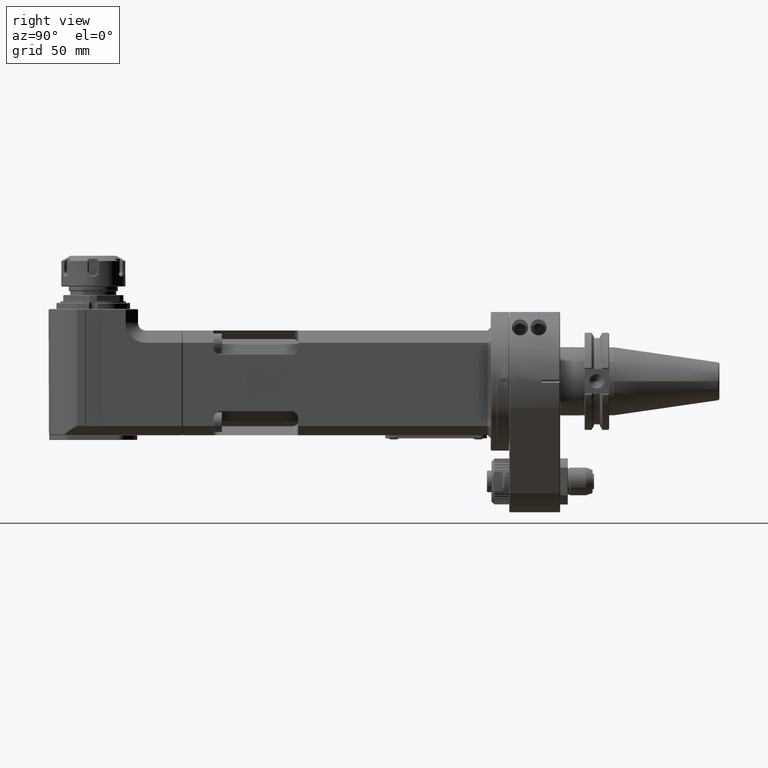
[diagram: clean part render]
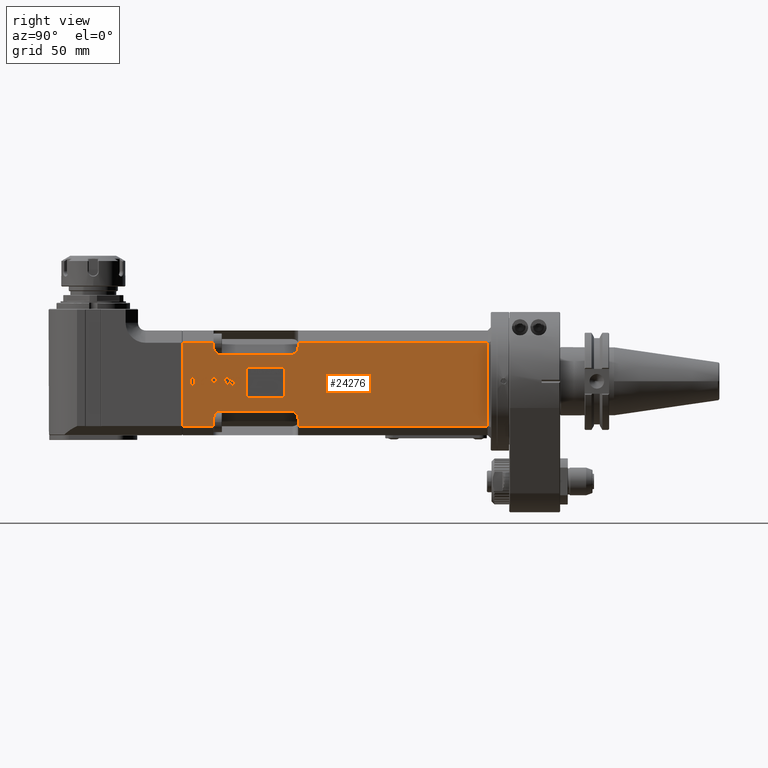
[diagram: same view with one face highlighted and labeled with its STEP entity id]
A machine part, right view. The second image highlights one B-rep face of the part: STEP entity #24276.
In plain terms, the highlighted planar face has unit normal (1, 0, -0).
Its self-contained STEP definition (entity closure, byte-faithful):
#427=PLANE('',#25849);
#1372=FACE_BOUND('',#3466,.T.);
#1373=FACE_BOUND('',#3467,.T.);
#1374=FACE_BOUND('',#3468,.T.);
#1375=FACE_BOUND('',#3469,.T.);
#1376=FACE_BOUND('',#3470,.T.);
#1377=FACE_BOUND('',#3471,.T.);
#1378=FACE_BOUND('',#3472,.T.);
#1379=FACE_BOUND('',#3473,.T.);
#1380=FACE_BOUND('',#3474,.T.);
#1381=FACE_BOUND('',#3475,.T.);
#1382=FACE_BOUND('',#3476,.T.);
#1383=FACE_BOUND('',#3477,.T.);
#1384=FACE_BOUND('',#3478,.T.);
#1537=B_SPLINE_CURVE_WITH_KNOTS('',3,(#35455,#35456,#35457,#35458),
 .UNSPECIFIED.,.F.,.F.,(4,4),(0.,1.),.UNSPECIFIED.);
#1538=B_SPLINE_CURVE_WITH_KNOTS('',3,(#35460,#35461,#35462,#35463),
 .UNSPECIFIED.,.F.,.F.,(4,4),(0.,1.),.UNSPECIFIED.);
#1539=B_SPLINE_CURVE_WITH_KNOTS('',3,(#35471,#35472,#35473,#35474),
 .UNSPECIFIED.,.F.,.F.,(4,4),(0.,1.),.UNSPECIFIED.);
#1540=B_SPLINE_CURVE_WITH_KNOTS('',3,(#35480,#35481,#35482,#35483),
 .UNSPECIFIED.,.F.,.F.,(4,4),(0.,1.),.UNSPECIFIED.);
#1541=B_SPLINE_CURVE_WITH_KNOTS('',3,(#35489,#35490,#35491,#35492),
 .UNSPECIFIED.,.F.,.F.,(4,4),(0.,1.),.UNSPECIFIED.);
#1542=B_SPLINE_CURVE_WITH_KNOTS('',3,(#35494,#35495,#35496,#35497),
 .UNSPECIFIED.,.F.,.F.,(4,4),(0.,1.),.UNSPECIFIED.);
#1543=B_SPLINE_CURVE_WITH_KNOTS('',3,(#35507,#35508,#35509,#35510),
 .UNSPECIFIED.,.F.,.F.,(4,4),(0.,1.),.UNSPECIFIED.);
#1544=B_SPLINE_CURVE_WITH_KNOTS('',3,(#35512,#35513,#35514,#35515),
 .UNSPECIFIED.,.F.,.F.,(4,4),(0.,1.),.UNSPECIFIED.);
#1545=B_SPLINE_CURVE_WITH_KNOTS('',3,(#35517,#35518,#35519,#35520),
 .UNSPECIFIED.,.F.,.F.,(4,4),(0.,1.),.UNSPECIFIED.);
#1546=B_SPLINE_CURVE_WITH_KNOTS('',3,(#35522,#35523,#35524,#35525),
 .UNSPECIFIED.,.F.,.F.,(4,4),(0.,1.),.UNSPECIFIED.);
#1547=B_SPLINE_CURVE_WITH_KNOTS('',3,(#35529,#35530,#35531,#35532),
 .UNSPECIFIED.,.F.,.F.,(4,4),(0.,1.),.UNSPECIFIED.);
#1548=B_SPLINE_CURVE_WITH_KNOTS('',3,(#35542,#35543,#35544,#35545),
 .UNSPECIFIED.,.F.,.F.,(4,4),(0.,1.),.UNSPECIFIED.);
#1549=B_SPLINE_CURVE_WITH_KNOTS('',3,(#35549,#35550,#35551,#35552),
 .UNSPECIFIED.,.F.,.F.,(4,4),(0.,1.),.UNSPECIFIED.);
#1550=B_SPLINE_CURVE_WITH_KNOTS('',3,(#35554,#35555,#35556,#35557),
 .UNSPECIFIED.,.F.,.F.,(4,4),(0.,1.),.UNSPECIFIED.);
#1551=B_SPLINE_CURVE_WITH_KNOTS('',3,(#35561,#35562,#35563,#35564),
 .UNSPECIFIED.,.F.,.F.,(4,4),(0.,1.),.UNSPECIFIED.);
#1552=B_SPLINE_CURVE_WITH_KNOTS('',3,(#35566,#35567,#35568,#35569),
 .UNSPECIFIED.,.F.,.F.,(4,4),(0.,1.),.UNSPECIFIED.);
#1553=B_SPLINE_CURVE_WITH_KNOTS('',3,(#35571,#35572,#35573,#35574),
 .UNSPECIFIED.,.F.,.F.,(4,4),(0.,1.),.UNSPECIFIED.);
#1554=B_SPLINE_CURVE_WITH_KNOTS('',3,(#35578,#35579,#35580,#35581),
 .UNSPECIFIED.,.F.,.F.,(4,4),(0.,1.),.UNSPECIFIED.);
#1555=B_SPLINE_CURVE_WITH_KNOTS('',3,(#35585,#35586,#35587,#35588),
 .UNSPECIFIED.,.F.,.F.,(4,4),(0.,1.),.UNSPECIFIED.);
#1556=B_SPLINE_CURVE_WITH_KNOTS('',3,(#35593,#35594,#35595,#35596),
 .UNSPECIFIED.,.F.,.F.,(4,4),(0.,1.),.UNSPECIFIED.);
#1557=B_SPLINE_CURVE_WITH_KNOTS('',3,(#35599,#35600,#35601,#35602),
 .UNSPECIFIED.,.F.,.F.,(4,4),(0.,1.),.UNSPECIFIED.);
#1558=B_SPLINE_CURVE_WITH_KNOTS('',3,(#35604,#35605,#35606,#35607),
 .UNSPECIFIED.,.F.,.F.,(4,4),(0.,1.),.UNSPECIFIED.);
#1559=B_SPLINE_CURVE_WITH_KNOTS('',3,(#35615,#35616,#35617,#35618),
 .UNSPECIFIED.,.F.,.F.,(4,4),(0.,1.),.UNSPECIFIED.);
#1560=B_SPLINE_CURVE_WITH_KNOTS('',3,(#35620,#35621,#35622,#35623),
 .UNSPECIFIED.,.F.,.F.,(4,4),(0.,1.),.UNSPECIFIED.);
#1561=B_SPLINE_CURVE_WITH_KNOTS('',3,(#35624,#35625,#35626,#35627),
 .UNSPECIFIED.,.F.,.F.,(4,4),(0.,1.),.UNSPECIFIED.);
#1562=B_SPLINE_CURVE_WITH_KNOTS('',3,(#35646,#35647,#35648,#35649),
 .UNSPECIFIED.,.F.,.F.,(4,4),(0.,1.),.UNSPECIFIED.);
#1563=B_SPLINE_CURVE_WITH_KNOTS('',3,(#35659,#35660,#35661,#35662),
 .UNSPECIFIED.,.F.,.F.,(4,4),(0.,1.),.UNSPECIFIED.);
#1564=B_SPLINE_CURVE_WITH_KNOTS('',3,(#35668,#35669,#35670,#35671),
 .UNSPECIFIED.,.F.,.F.,(4,4),(0.,1.),.UNSPECIFIED.);
#1565=B_SPLINE_CURVE_WITH_KNOTS('',3,(#35677,#35678,#35679,#35680),
 .UNSPECIFIED.,.F.,.F.,(4,4),(0.,1.),.UNSPECIFIED.);
#1566=B_SPLINE_CURVE_WITH_KNOTS('',3,(#35682,#35683,#35684,#35685),
 .UNSPECIFIED.,.F.,.F.,(4,4),(0.,1.),.UNSPECIFIED.);
#1567=B_SPLINE_CURVE_WITH_KNOTS('',3,(#35691,#35692,#35693,#35694),
 .UNSPECIFIED.,.F.,.F.,(4,4),(0.,1.),.UNSPECIFIED.);
#1568=B_SPLINE_CURVE_WITH_KNOTS('',3,(#35696,#35697,#35698,#35699),
 .UNSPECIFIED.,.F.,.F.,(4,4),(0.,1.),.UNSPECIFIED.);
#1569=B_SPLINE_CURVE_WITH_KNOTS('',3,(#35703,#35704,#35705,#35706),
 .UNSPECIFIED.,.F.,.F.,(4,4),(0.,1.),.UNSPECIFIED.);
#1570=B_SPLINE_CURVE_WITH_KNOTS('',3,(#35708,#35709,#35710,#35711),
 .UNSPECIFIED.,.F.,.F.,(4,4),(0.,1.),.UNSPECIFIED.);
#1571=B_SPLINE_CURVE_WITH_KNOTS('',3,(#35715,#35716,#35717,#35718),
 .UNSPECIFIED.,.F.,.F.,(4,4),(0.,1.),.UNSPECIFIED.);
#1572=B_SPLINE_CURVE_WITH_KNOTS('',3,(#35748,#35749,#35750,#35751),
 .UNSPECIFIED.,.F.,.F.,(4,4),(0.,1.),.UNSPECIFIED.);
#1573=B_SPLINE_CURVE_WITH_KNOTS('',3,(#35759,#35760,#35761,#35762),
 .UNSPECIFIED.,.F.,.F.,(4,4),(0.,1.),.UNSPECIFIED.);
#1574=B_SPLINE_CURVE_WITH_KNOTS('',3,(#35764,#35765,#35766,#35767),
 .UNSPECIFIED.,.F.,.F.,(4,4),(0.,1.),.UNSPECIFIED.);
#1575=B_SPLINE_CURVE_WITH_KNOTS('',3,(#35769,#35770,#35771,#35772),
 .UNSPECIFIED.,.F.,.F.,(4,4),(0.,1.),.UNSPECIFIED.);
#1576=B_SPLINE_CURVE_WITH_KNOTS('',3,(#35786,#35787,#35788,#35789),
 .UNSPECIFIED.,.F.,.F.,(4,4),(0.,1.),.UNSPECIFIED.);
#1577=B_SPLINE_CURVE_WITH_KNOTS('',3,(#35794,#35795,#35796,#35797),
 .UNSPECIFIED.,.F.,.F.,(4,4),(0.,1.),.UNSPECIFIED.);
#1578=B_SPLINE_CURVE_WITH_KNOTS('',3,(#35808,#35809,#35810,#35811),
 .UNSPECIFIED.,.F.,.F.,(4,4),(0.,1.),.UNSPECIFIED.);
#1579=B_SPLINE_CURVE_WITH_KNOTS('',3,(#35813,#35814,#35815,#35816),
 .UNSPECIFIED.,.F.,.F.,(4,4),(0.,1.),.UNSPECIFIED.);
#1580=B_SPLINE_CURVE_WITH_KNOTS('',3,(#35822,#35823,#35824,#35825),
 .UNSPECIFIED.,.F.,.F.,(4,4),(0.,1.),.UNSPECIFIED.);
#1581=B_SPLINE_CURVE_WITH_KNOTS('',3,(#35826,#35827,#35828,#35829),
 .UNSPECIFIED.,.F.,.F.,(4,4),(0.,1.),.UNSPECIFIED.);
#1582=B_SPLINE_CURVE_WITH_KNOTS('',3,(#35832,#35833,#35834,#35835),
 .UNSPECIFIED.,.F.,.F.,(4,4),(0.,1.),.UNSPECIFIED.);
#1583=B_SPLINE_CURVE_WITH_KNOTS('',3,(#35837,#35838,#35839,#35840),
 .UNSPECIFIED.,.F.,.F.,(4,4),(0.,1.),.UNSPECIFIED.);
#1584=B_SPLINE_CURVE_WITH_KNOTS('',3,(#35848,#35849,#35850,#35851),
 .UNSPECIFIED.,.F.,.F.,(4,4),(0.,1.),.UNSPECIFIED.);
#1585=B_SPLINE_CURVE_WITH_KNOTS('',3,(#35853,#35854,#35855,#35856),
 .UNSPECIFIED.,.F.,.F.,(4,4),(0.,1.),.UNSPECIFIED.);
#1586=B_SPLINE_CURVE_WITH_KNOTS('',3,(#35857,#35858,#35859,#35860),
 .UNSPECIFIED.,.F.,.F.,(4,4),(0.,1.),.UNSPECIFIED.);
#1985=FACE_OUTER_BOUND('',#3465,.T.);
#3465=EDGE_LOOP('',(#16638,#16639,#16640,#16641,#16642,#16643,#16644,#16645,
#16646,#16647,#16648,#16649,#16650,#16651,#16652,#16653));
#3466=EDGE_LOOP('',(#16654,#16655,#16656,#16657));
#3467=EDGE_LOOP('',(#16658,#16659,#16660,#16661));
#3468=EDGE_LOOP('',(#16662,#16663,#16664,#16665,#16666,#16667,#16668,#16669,
#16670,#16671,#16672,#16673,#16674,#16675,#16676,#16677,#16678,#16679,#16680,
#16681,#16682,#16683,#16684,#16685,#16686,#16687,#16688));
#3469=EDGE_LOOP('',(#16689,#16690,#16691,#16692,#16693,#16694,#16695,#16696,
#16697,#16698,#16699,#16700,#16701,#16702,#16703,#16704,#16705,#16706,#16707,
#16708));
#3470=EDGE_LOOP('',(#16709,#16710,#16711,#16712,#16713,#16714,#16715,#16716));
#3471=EDGE_LOOP('',(#16717,#16718,#16719,#16720));
#3472=EDGE_LOOP('',(#16721,#16722,#16723,#16724,#16725,#16726,#16727,#16728,
#16729));
#3473=EDGE_LOOP('',(#16730,#16731,#16732,#16733,#16734,#16735,#16736,#16737,
#16738,#16739,#16740,#16741,#16742,#16743,#16744,#16745,#16746,#16747));
#3474=EDGE_LOOP('',(#16748,#16749,#16750,#16751,#16752,#16753));
#3475=EDGE_LOOP('',(#16754,#16755,#16756,#16757));
#3476=EDGE_LOOP('',(#16758,#16759,#16760,#16761,#16762,#16763,#16764,#16765,
#16766,#16767,#16768,#16769,#16770,#16771,#16772,#16773,#16774,#16775,#16776,
#16777));
#3477=EDGE_LOOP('',(#16778,#16779,#16780,#16781,#16782,#16783,#16784,#16785,
#16786,#16787));
#3478=EDGE_LOOP('',(#16788,#16789,#16790,#16791,#16792,#16793,#16794,#16795));
#5091=ELLIPSE('',#25850,5.65685424949238,4.);
#5092=ELLIPSE('',#25851,5.65685424949238,4.);
#5093=ELLIPSE('',#25852,5.65685424949238,4.);
#5094=ELLIPSE('',#25853,5.65685424949238,4.);
#5095=ELLIPSE('',#25854,15.6597586060771,5.11067427237765);
#5096=ELLIPSE('',#25855,63.017138848002,10.6812482497935);
#5097=ELLIPSE('',#25856,211.184830877659,20.2645927173231);
#5098=ELLIPSE('',#25857,20.8021242228401,6.87575692370467);
#5099=ELLIPSE('',#25858,2237.02865027851,62.4740093274353);
#5100=ELLIPSE('',#25859,11.3334350721806,4.0242570076969);
#5101=ELLIPSE('',#25860,21.5383808593715,3.9889650186354);
#5102=ELLIPSE('',#25861,12.4227707856598,3.72513719627285);
#5103=ELLIPSE('',#25862,515.434070243218,25.2864978342166);
#5104=ELLIPSE('',#25863,20.7501746269111,4.72923953847616);
#5105=ELLIPSE('',#25864,242.588966062953,18.9024034879435);
#5106=ELLIPSE('',#25865,181.594117016176,9.83682681577503);
#5107=ELLIPSE('',#25866,21.5864410080815,3.7840311913894);
#5108=ELLIPSE('',#25867,5.2992042049101,1.45810028309361);
#5109=ELLIPSE('',#25868,105.663591136106,10.2892391200437);
#5110=ELLIPSE('',#25869,9.56496289892837,3.21181817139458);
#5111=ELLIPSE('',#25870,18.9053731716278,3.0463573860807);
#5112=ELLIPSE('',#25871,45.9855628644993,6.85688348929467);
#5113=ELLIPSE('',#25872,84.428615446891,9.77996807155735);
#5114=ELLIPSE('',#25873,61.193003105054,7.71503534087732);
#5115=ELLIPSE('',#25874,16.637973685692,4.02963893571953);
#5116=ELLIPSE('',#25875,93.3240982814778,9.60826785390583);
#5117=ELLIPSE('',#25876,23.1175124921846,3.44464723901228);
#5118=ELLIPSE('',#25877,14.2624026973479,6.51058055233282);
#5119=ELLIPSE('',#25878,11.7174079195612,3.42708563827762);
#5120=ELLIPSE('',#25879,14.2555249644484,2.03550694244997);
#5121=ELLIPSE('',#25880,35.2214005614302,4.63937616892251);
#5122=ELLIPSE('',#25881,22.0867320823457,3.82758005058001);
#5123=ELLIPSE('',#25882,62.2935943481401,7.70248701086334);
#5124=ELLIPSE('',#25883,18.2002842310633,5.01048381074787);
#5125=ELLIPSE('',#25884,10.2395206960225,3.32485794315686);
#5126=ELLIPSE('',#25885,379.80135649569,18.1348497280443);
#5127=ELLIPSE('',#25886,8.62659646737325,2.96808853984443);
#5128=ELLIPSE('',#25887,17.2862613740637,2.68588374798267);
#5129=ELLIPSE('',#25888,12.4205656299089,1.27163060279932);
#5130=ELLIPSE('',#25889,14.8627284687297,3.49820999359483);
#5131=ELLIPSE('',#25890,22.4431745662126,4.07639841250438);
#5132=ELLIPSE('',#25891,24.6463892974506,5.18256022844158);
#5133=ELLIPSE('',#25892,59.5589777251669,8.23094954043881);
#5134=ELLIPSE('',#25893,18.8128840639848,4.3392032336568);
#5135=ELLIPSE('',#25894,61.1020949882144,9.58077065652496);
#5136=ELLIPSE('',#25895,20.6130450366734,1.98856695385155);
#5137=ELLIPSE('',#25896,3.4765521519323,0.110247787232104);
#5138=ELLIPSE('',#25897,21.1649382961371,4.74401197563404);
#5139=ELLIPSE('',#25898,61.2861429368199,7.72089390303924);
#5140=ELLIPSE('',#25899,16.6337441425486,4.02913130508809);
#5141=ELLIPSE('',#25900,93.4258719332471,9.61358243082651);
#6296=LINE('',#35313,#8329);
#6331=LINE('',#35398,#8364);
#6332=LINE('',#35401,#8365);
#6333=LINE('',#35405,#8366);
#6334=LINE('',#35409,#8367);
#6335=LINE('',#35411,#8368);
#6336=LINE('',#35413,#8369);
#6337=LINE('',#35415,#8370);
#6338=LINE('',#35417,#8371);
#6339=LINE('',#35421,#8372);
#6340=LINE('',#35425,#8373);
#6341=LINE('',#35426,#8374);
#6342=LINE('',#35429,#8375);
#6343=LINE('',#35431,#8376);
#6344=LINE('',#35433,#8377);
#6345=LINE('',#35434,#8378);
#6346=LINE('',#35437,#8379);
#6347=LINE('',#35439,#8380);
#6348=LINE('',#35441,#8381);
#6349=LINE('',#35442,#8382);
#6350=LINE('',#35445,#8383);
#6351=LINE('',#35447,#8384);
#6352=LINE('',#35449,#8385);
#6353=LINE('',#35451,#8386);
#6354=LINE('',#35487,#8387);
#6355=LINE('',#35526,#8388);
#6356=LINE('',#35534,#8389);
#6357=LINE('',#35547,#8390);
#6358=LINE('',#35630,#8391);
#6359=LINE('',#35632,#8392);
#6360=LINE('',#35634,#8393);
#6361=LINE('',#35635,#8394);
#6362=LINE('',#35638,#8395);
#6363=LINE('',#35640,#8396);
#6364=LINE('',#35642,#8397);
#6365=LINE('',#35651,#8398);
#6366=LINE('',#35656,#8399);
#6367=LINE('',#35664,#8400);
#6368=LINE('',#35722,#8401);
#6369=LINE('',#35724,#8402);
#6370=LINE('',#35726,#8403);
#6371=LINE('',#35728,#8404);
#6372=LINE('',#35730,#8405);
#6373=LINE('',#35731,#8406);
#6374=LINE('',#35734,#8407);
#6375=LINE('',#35736,#8408);
#6376=LINE('',#35738,#8409);
#6377=LINE('',#35739,#8410);
#6378=LINE('',#35742,#8411);
#6379=LINE('',#35744,#8412);
#6380=LINE('',#35746,#8413);
#6381=LINE('',#35776,#8414);
#6382=LINE('',#35800,#8415);
#6383=LINE('',#35802,#8416);
#6384=LINE('',#35804,#8417);
#6385=LINE('',#35806,#8418);
#6386=LINE('',#35818,#8419);
#8329=VECTOR('',#28333,54.);
#8364=VECTOR('',#28402,123.);
#8365=VECTOR('',#28405,1.899494936612);
#8366=VECTOR('',#28408,47.);
#8367=VECTOR('',#28411,1.899494936612);
#8368=VECTOR('',#28412,20.);
#8369=VECTOR('',#28413,54.);
#8370=VECTOR('',#28414,20.);
#8371=VECTOR('',#28415,3.899494936612);
#8372=VECTOR('',#28418,47.);
#8373=VECTOR('',#28421,3.899494936612);
#8374=VECTOR('',#28422,123.);
#8375=VECTOR('',#28423,13.7664737594);
#8376=VECTOR('',#28424,25.01386601979);
#8377=VECTOR('',#28425,13.7664737594);
#8378=VECTOR('',#28426,25.01386601979);
#8379=VECTOR('',#28427,5.291002751506);
#8380=VECTOR('',#28428,25.0363228398);
#8381=VECTOR('',#28429,5.291002751506);
#8382=VECTOR('',#28430,25.0363228398);
#8383=VECTOR('',#28431,1.203956305981);
#8384=VECTOR('',#28432,0.5900408327579);
#8385=VECTOR('',#28433,1.73601962370604);
#8386=VECTOR('',#28434,1.858799308538);
#8387=VECTOR('',#28449,0.514464304002981);
#8388=VECTOR('',#28458,0.9311050921679);
#8389=VECTOR('',#28459,0.487375960250209);
#8390=VECTOR('',#28466,0.1227831840515);
#8391=VECTOR('',#28483,1.545020341873);
#8392=VECTOR('',#28484,0.6173260509968);
#8393=VECTOR('',#28485,1.545020341873);
#8394=VECTOR('',#28486,0.6173260509968);
#8395=VECTOR('',#28487,5.020464062691);
#8396=VECTOR('',#28488,0.5047750473022);
#8397=VECTOR('',#28489,3.9120054245);
#8398=VECTOR('',#28492,0.5934515595436);
#8399=VECTOR('',#28497,0.3274214267731);
#8400=VECTOR('',#28498,0.503633097278006);
#8401=VECTOR('',#28515,2.561392784119);
#8402=VECTOR('',#28516,5.);
#8403=VECTOR('',#28517,0.5422925949097);
#8404=VECTOR('',#28518,4.409959055483);
#8405=VECTOR('',#28519,2.019100189209);
#8406=VECTOR('',#28520,0.5900409445167);
#8407=VECTOR('',#28521,0.5729866027832);
#8408=VECTOR('',#28522,0.6991814821959);
#8409=VECTOR('',#28523,0.5729866027832);
#8410=VECTOR('',#28524,0.6991814821959);
#8411=VECTOR('',#28525,2.012279033661);
#8412=VECTOR('',#28526,0.5900409445167);
#8413=VECTOR('',#28527,2.711460590363);
#8414=VECTOR('',#28536,0.522451795575016);
#8415=VECTOR('',#28549,2.002046108246);
#8416=VECTOR('',#28550,0.5900409817696);
#8417=VECTOR('',#28551,2.650067806244);
#8418=VECTOR('',#28552,0.4774898290634);
#8419=VECTOR('',#28553,0.5150055885315);
#10367=VERTEX_POINT('',#35308);
#10368=VERTEX_POINT('',#35312);
#10401=VERTEX_POINT('',#35396);
#10402=VERTEX_POINT('',#35400);
#10403=VERTEX_POINT('',#35402);
#10404=VERTEX_POINT('',#35404);
#10405=VERTEX_POINT('',#35406);
#10406=VERTEX_POINT('',#35408);
#10407=VERTEX_POINT('',#35410);
#10408=VERTEX_POINT('',#35412);
#10409=VERTEX_POINT('',#35414);
#10410=VERTEX_POINT('',#35416);
#10411=VERTEX_POINT('',#35418);
#10412=VERTEX_POINT('',#35420);
#10413=VERTEX_POINT('',#35422);
#10414=VERTEX_POINT('',#35424);
#10415=VERTEX_POINT('',#35427);
#10416=VERTEX_POINT('',#35428);
#10417=VERTEX_POINT('',#35430);
#10418=VERTEX_POINT('',#35432);
#10419=VERTEX_POINT('',#35435);
#10420=VERTEX_POINT('',#35436);
#10421=VERTEX_POINT('',#35438);
#10422=VERTEX_POINT('',#35440);
#10423=VERTEX_POINT('',#35443);
#10424=VERTEX_POINT('',#35444);
#10425=VERTEX_POINT('',#35446);
#10426=VERTEX_POINT('',#35448);
#10427=VERTEX_POINT('',#35450);
#10428=VERTEX_POINT('',#35452);
#10429=VERTEX_POINT('',#35454);
#10430=VERTEX_POINT('',#35459);
#10431=VERTEX_POINT('',#35464);
#10432=VERTEX_POINT('',#35466);
#10433=VERTEX_POINT('',#35468);
#10434=VERTEX_POINT('',#35470);
#10435=VERTEX_POINT('',#35475);
#10436=VERTEX_POINT('',#35477);
#10437=VERTEX_POINT('',#35479);
#10438=VERTEX_POINT('',#35484);
#10439=VERTEX_POINT('',#35486);
#10440=VERTEX_POINT('',#35488);
#10441=VERTEX_POINT('',#35493);
#10442=VERTEX_POINT('',#35498);
#10443=VERTEX_POINT('',#35500);
#10444=VERTEX_POINT('',#35502);
#10445=VERTEX_POINT('',#35504);
#10446=VERTEX_POINT('',#35506);
#10447=VERTEX_POINT('',#35511);
#10448=VERTEX_POINT('',#35516);
#10449=VERTEX_POINT('',#35521);
#10450=VERTEX_POINT('',#35527);
#10451=VERTEX_POINT('',#35528);
#10452=VERTEX_POINT('',#35533);
#10453=VERTEX_POINT('',#35535);
#10454=VERTEX_POINT('',#35537);
#10455=VERTEX_POINT('',#35539);
#10456=VERTEX_POINT('',#35541);
#10457=VERTEX_POINT('',#35546);
#10458=VERTEX_POINT('',#35548);
#10459=VERTEX_POINT('',#35553);
#10460=VERTEX_POINT('',#35558);
#10461=VERTEX_POINT('',#35560);
#10462=VERTEX_POINT('',#35565);
#10463=VERTEX_POINT('',#35570);
#10464=VERTEX_POINT('',#35575);
#10465=VERTEX_POINT('',#35577);
#10466=VERTEX_POINT('',#35582);
#10467=VERTEX_POINT('',#35584);
#10468=VERTEX_POINT('',#35589);
#10469=VERTEX_POINT('',#35591);
#10470=VERTEX_POINT('',#35597);
#10471=VERTEX_POINT('',#35598);
#10472=VERTEX_POINT('',#35603);
#10473=VERTEX_POINT('',#35608);
#10474=VERTEX_POINT('',#35610);
#10475=VERTEX_POINT('',#35612);
#10476=VERTEX_POINT('',#35614);
#10477=VERTEX_POINT('',#35619);
#10478=VERTEX_POINT('',#35628);
#10479=VERTEX_POINT('',#35629);
#10480=VERTEX_POINT('',#35631);
#10481=VERTEX_POINT('',#35633);
#10482=VERTEX_POINT('',#35636);
#10483=VERTEX_POINT('',#35637);
#10484=VERTEX_POINT('',#35639);
#10485=VERTEX_POINT('',#35641);
#10486=VERTEX_POINT('',#35643);
#10487=VERTEX_POINT('',#35645);
#10488=VERTEX_POINT('',#35650);
#10489=VERTEX_POINT('',#35652);
#10490=VERTEX_POINT('',#35654);
#10491=VERTEX_POINT('',#35657);
#10492=VERTEX_POINT('',#35658);
#10493=VERTEX_POINT('',#35663);
#10494=VERTEX_POINT('',#35665);
#10495=VERTEX_POINT('',#35667);
#10496=VERTEX_POINT('',#35672);
#10497=VERTEX_POINT('',#35674);
#10498=VERTEX_POINT('',#35676);
#10499=VERTEX_POINT('',#35681);
#10500=VERTEX_POINT('',#35686);
#10501=VERTEX_POINT('',#35688);
#10502=VERTEX_POINT('',#35690);
#10503=VERTEX_POINT('',#35695);
#10504=VERTEX_POINT('',#35700);
#10505=VERTEX_POINT('',#35702);
#10506=VERTEX_POINT('',#35707);
#10507=VERTEX_POINT('',#35712);
#10508=VERTEX_POINT('',#35714);
#10509=VERTEX_POINT('',#35720);
#10510=VERTEX_POINT('',#35721);
#10511=VERTEX_POINT('',#35723);
#10512=VERTEX_POINT('',#35725);
#10513=VERTEX_POINT('',#35727);
#10514=VERTEX_POINT('',#35729);
#10515=VERTEX_POINT('',#35732);
#10516=VERTEX_POINT('',#35733);
#10517=VERTEX_POINT('',#35735);
#10518=VERTEX_POINT('',#35737);
#10519=VERTEX_POINT('',#35740);
#10520=VERTEX_POINT('',#35741);
#10521=VERTEX_POINT('',#35743);
#10522=VERTEX_POINT('',#35745);
#10523=VERTEX_POINT('',#35747);
#10524=VERTEX_POINT('',#35752);
#10525=VERTEX_POINT('',#35754);
#10526=VERTEX_POINT('',#35756);
#10527=VERTEX_POINT('',#35758);
#10528=VERTEX_POINT('',#35763);
#10529=VERTEX_POINT('',#35768);
#10530=VERTEX_POINT('',#35773);
#10531=VERTEX_POINT('',#35775);
#10532=VERTEX_POINT('',#35777);
#10533=VERTEX_POINT('',#35779);
#10534=VERTEX_POINT('',#35781);
#10535=VERTEX_POINT('',#35783);
#10536=VERTEX_POINT('',#35785);
#10537=VERTEX_POINT('',#35790);
#10538=VERTEX_POINT('',#35792);
#10539=VERTEX_POINT('',#35798);
#10540=VERTEX_POINT('',#35799);
#10541=VERTEX_POINT('',#35801);
#10542=VERTEX_POINT('',#35803);
#10543=VERTEX_POINT('',#35805);
#10544=VERTEX_POINT('',#35807);
#10545=VERTEX_POINT('',#35812);
#10546=VERTEX_POINT('',#35817);
#10547=VERTEX_POINT('',#35819);
#10548=VERTEX_POINT('',#35821);
#10549=VERTEX_POINT('',#35830);
#10550=VERTEX_POINT('',#35831);
#10551=VERTEX_POINT('',#35836);
#10552=VERTEX_POINT('',#35841);
#10553=VERTEX_POINT('',#35843);
#10554=VERTEX_POINT('',#35845);
#10555=VERTEX_POINT('',#35847);
#10556=VERTEX_POINT('',#35852);
#12817=EDGE_CURVE('',#10368,#10367,#6296,.T.);
#12860=EDGE_CURVE('',#10401,#10367,#6331,.T.);
#12861=EDGE_CURVE('',#10402,#10401,#6332,.T.);
#12862=EDGE_CURVE('',#10402,#10403,#5091,.T.);
#12863=EDGE_CURVE('',#10403,#10404,#6333,.T.);
#12864=EDGE_CURVE('',#10404,#10405,#5092,.T.);
#12865=EDGE_CURVE('',#10405,#10406,#6334,.T.);
#12866=EDGE_CURVE('',#10407,#10406,#6335,.T.);
#12867=EDGE_CURVE('',#10408,#10407,#6336,.T.);
#12868=EDGE_CURVE('',#10408,#10409,#6337,.T.);
#12869=EDGE_CURVE('',#10409,#10410,#6338,.T.);
#12870=EDGE_CURVE('',#10410,#10411,#5093,.T.);
#12871=EDGE_CURVE('',#10412,#10411,#6339,.T.);
#12872=EDGE_CURVE('',#10412,#10413,#5094,.T.);
#12873=EDGE_CURVE('',#10414,#10413,#6340,.T.);
#12874=EDGE_CURVE('',#10414,#10368,#6341,.T.);
#12875=EDGE_CURVE('',#10415,#10416,#6342,.T.);
#12876=EDGE_CURVE('',#10417,#10415,#6343,.T.);
#12877=EDGE_CURVE('',#10418,#10417,#6344,.T.);
#12878=EDGE_CURVE('',#10416,#10418,#6345,.T.);
#12879=EDGE_CURVE('',#10419,#10420,#6346,.T.);
#12880=EDGE_CURVE('',#10421,#10419,#6347,.T.);
#12881=EDGE_CURVE('',#10422,#10421,#6348,.T.);
#12882=EDGE_CURVE('',#10420,#10422,#6349,.T.);
#12883=EDGE_CURVE('',#10423,#10424,#6350,.T.);
#12884=EDGE_CURVE('',#10425,#10423,#6351,.T.);
#12885=EDGE_CURVE('',#10426,#10425,#6352,.T.);
#12886=EDGE_CURVE('',#10427,#10426,#6353,.T.);
#12887=EDGE_CURVE('',#10428,#10427,#5095,.T.);
#12888=EDGE_CURVE('',#10429,#10428,#1537,.T.);
#12889=EDGE_CURVE('',#10430,#10429,#1538,.T.);
#12890=EDGE_CURVE('',#10431,#10430,#5096,.T.);
#12891=EDGE_CURVE('',#10432,#10431,#5097,.T.);
#12892=EDGE_CURVE('',#10433,#10432,#5098,.T.);
#12893=EDGE_CURVE('',#10434,#10433,#1539,.T.);
#12894=EDGE_CURVE('',#10435,#10434,#5099,.T.);
#12895=EDGE_CURVE('',#10436,#10435,#5100,.T.);
#12896=EDGE_CURVE('',#10437,#10436,#1540,.T.);
#12897=EDGE_CURVE('',#10438,#10437,#5101,.T.);
#12898=EDGE_CURVE('',#10439,#10438,#6354,.T.);
#12899=EDGE_CURVE('',#10440,#10439,#1541,.T.);
#12900=EDGE_CURVE('',#10441,#10440,#1542,.T.);
#12901=EDGE_CURVE('',#10442,#10441,#5102,.T.);
#12902=EDGE_CURVE('',#10443,#10442,#5103,.T.);
#12903=EDGE_CURVE('',#10444,#10443,#5104,.T.);
#12904=EDGE_CURVE('',#10445,#10444,#5105,.T.);
#12905=EDGE_CURVE('',#10446,#10445,#1543,.T.);
#12906=EDGE_CURVE('',#10447,#10446,#1544,.T.);
#12907=EDGE_CURVE('',#10448,#10447,#1545,.T.);
#12908=EDGE_CURVE('',#10449,#10448,#1546,.T.);
#12909=EDGE_CURVE('',#10424,#10449,#6355,.T.);
#12910=EDGE_CURVE('',#10450,#10451,#1547,.T.);
#12911=EDGE_CURVE('',#10452,#10450,#6356,.T.);
#12912=EDGE_CURVE('',#10453,#10452,#5106,.T.);
#12913=EDGE_CURVE('',#10454,#10453,#5107,.T.);
#12914=EDGE_CURVE('',#10455,#10454,#5108,.T.);
#12915=EDGE_CURVE('',#10456,#10455,#1548,.T.);
#12916=EDGE_CURVE('',#10457,#10456,#6357,.T.);
#12917=EDGE_CURVE('',#10458,#10457,#1549,.T.);
#12918=EDGE_CURVE('',#10459,#10458,#1550,.T.);
#12919=EDGE_CURVE('',#10460,#10459,#5109,.T.);
#12920=EDGE_CURVE('',#10461,#10460,#1551,.T.);
#12921=EDGE_CURVE('',#10462,#10461,#1552,.T.);
#12922=EDGE_CURVE('',#10463,#10462,#1553,.T.);
#12923=EDGE_CURVE('',#10464,#10463,#5110,.T.);
#12924=EDGE_CURVE('',#10465,#10464,#1554,.T.);
#12925=EDGE_CURVE('',#10466,#10465,#5111,.T.);
#12926=EDGE_CURVE('',#10467,#10466,#1555,.T.);
#12927=EDGE_CURVE('',#10468,#10467,#5112,.T.);
#12928=EDGE_CURVE('',#10469,#10468,#5113,.T.);
#12929=EDGE_CURVE('',#10451,#10469,#1556,.T.);
#12930=EDGE_CURVE('',#10470,#10471,#1557,.T.);
#12931=EDGE_CURVE('',#10472,#10470,#1558,.T.);
#12932=EDGE_CURVE('',#10473,#10472,#5114,.T.);
#12933=EDGE_CURVE('',#10474,#10473,#5115,.T.);
#12934=EDGE_CURVE('',#10475,#10474,#5116,.T.);
#12935=EDGE_CURVE('',#10476,#10475,#1559,.T.);
#12936=EDGE_CURVE('',#10477,#10476,#1560,.T.);
#12937=EDGE_CURVE('',#10471,#10477,#1561,.T.);
#12938=EDGE_CURVE('',#10478,#10479,#6358,.T.);
#12939=EDGE_CURVE('',#10480,#10478,#6359,.T.);
#12940=EDGE_CURVE('',#10481,#10480,#6360,.T.);
#12941=EDGE_CURVE('',#10479,#10481,#6361,.T.);
#12942=EDGE_CURVE('',#10482,#10483,#6362,.T.);
#12943=EDGE_CURVE('',#10484,#10482,#6363,.T.);
#12944=EDGE_CURVE('',#10485,#10484,#6364,.T.);
#12945=EDGE_CURVE('',#10486,#10485,#5117,.T.);
#12946=EDGE_CURVE('',#10487,#10486,#1562,.T.);
#12947=EDGE_CURVE('',#10488,#10487,#6365,.T.);
#12948=EDGE_CURVE('',#10489,#10488,#5118,.T.);
#12949=EDGE_CURVE('',#10490,#10489,#5119,.T.);
#12950=EDGE_CURVE('',#10483,#10490,#6366,.T.);
#12951=EDGE_CURVE('',#10491,#10492,#1563,.T.);
#12952=EDGE_CURVE('',#10493,#10491,#6367,.T.);
#12953=EDGE_CURVE('',#10494,#10493,#5120,.T.);
#12954=EDGE_CURVE('',#10495,#10494,#1564,.T.);
#12955=EDGE_CURVE('',#10496,#10495,#5121,.T.);
#12956=EDGE_CURVE('',#10497,#10496,#5122,.T.);
#12957=EDGE_CURVE('',#10498,#10497,#1565,.T.);
#12958=EDGE_CURVE('',#10499,#10498,#1566,.T.);
#12959=EDGE_CURVE('',#10500,#10499,#5123,.T.);
#12960=EDGE_CURVE('',#10501,#10500,#5124,.T.);
#12961=EDGE_CURVE('',#10502,#10501,#1567,.T.);
#12962=EDGE_CURVE('',#10503,#10502,#1568,.T.);
#12963=EDGE_CURVE('',#10504,#10503,#5125,.T.);
#12964=EDGE_CURVE('',#10505,#10504,#1569,.T.);
#12965=EDGE_CURVE('',#10506,#10505,#1570,.T.);
#12966=EDGE_CURVE('',#10507,#10506,#5126,.T.);
#12967=EDGE_CURVE('',#10508,#10507,#1571,.T.);
#12968=EDGE_CURVE('',#10492,#10508,#5127,.T.);
#12969=EDGE_CURVE('',#10509,#10510,#6368,.T.);
#12970=EDGE_CURVE('',#10511,#10509,#6369,.T.);
#12971=EDGE_CURVE('',#10512,#10511,#6370,.T.);
#12972=EDGE_CURVE('',#10513,#10512,#6371,.T.);
#12973=EDGE_CURVE('',#10514,#10513,#6372,.T.);
#12974=EDGE_CURVE('',#10510,#10514,#6373,.T.);
#12975=EDGE_CURVE('',#10515,#10516,#6374,.T.);
#12976=EDGE_CURVE('',#10517,#10515,#6375,.T.);
#12977=EDGE_CURVE('',#10518,#10517,#6376,.T.);
#12978=EDGE_CURVE('',#10516,#10518,#6377,.T.);
#12979=EDGE_CURVE('',#10519,#10520,#6378,.T.);
#12980=EDGE_CURVE('',#10521,#10519,#6379,.T.);
#12981=EDGE_CURVE('',#10522,#10521,#6380,.T.);
#12982=EDGE_CURVE('',#10523,#10522,#1572,.T.);
#12983=EDGE_CURVE('',#10524,#10523,#5128,.T.);
#12984=EDGE_CURVE('',#10525,#10524,#5129,.T.);
#12985=EDGE_CURVE('',#10526,#10525,#5130,.T.);
#12986=EDGE_CURVE('',#10527,#10526,#1573,.T.);
#12987=EDGE_CURVE('',#10528,#10527,#1574,.T.);
#12988=EDGE_CURVE('',#10529,#10528,#1575,.T.);
#12989=EDGE_CURVE('',#10530,#10529,#5131,.T.);
#12990=EDGE_CURVE('',#10531,#10530,#6381,.T.);
#12991=EDGE_CURVE('',#10532,#10531,#5132,.T.);
#12992=EDGE_CURVE('',#10533,#10532,#5133,.T.);
#12993=EDGE_CURVE('',#10534,#10533,#5134,.T.);
#12994=EDGE_CURVE('',#10535,#10534,#5135,.T.);
#12995=EDGE_CURVE('',#10536,#10535,#1576,.T.);
#12996=EDGE_CURVE('',#10537,#10536,#5136,.T.);
#12997=EDGE_CURVE('',#10538,#10537,#5137,.T.);
#12998=EDGE_CURVE('',#10520,#10538,#1577,.T.);
#12999=EDGE_CURVE('',#10539,#10540,#6382,.T.);
#13000=EDGE_CURVE('',#10541,#10539,#6383,.T.);
#13001=EDGE_CURVE('',#10542,#10541,#6384,.T.);
#13002=EDGE_CURVE('',#10543,#10542,#6385,.T.);
#13003=EDGE_CURVE('',#10544,#10543,#1578,.T.);
#13004=EDGE_CURVE('',#10545,#10544,#1579,.T.);
#13005=EDGE_CURVE('',#10546,#10545,#6386,.T.);
#13006=EDGE_CURVE('',#10547,#10546,#5138,.T.);
#13007=EDGE_CURVE('',#10548,#10547,#1580,.T.);
#13008=EDGE_CURVE('',#10540,#10548,#1581,.T.);
#13009=EDGE_CURVE('',#10549,#10550,#1582,.T.);
#13010=EDGE_CURVE('',#10551,#10549,#1583,.T.);
#13011=EDGE_CURVE('',#10552,#10551,#5139,.T.);
#13012=EDGE_CURVE('',#10553,#10552,#5140,.T.);
#13013=EDGE_CURVE('',#10554,#10553,#5141,.T.);
#13014=EDGE_CURVE('',#10555,#10554,#1584,.T.);
#13015=EDGE_CURVE('',#10556,#10555,#1585,.T.);
#13016=EDGE_CURVE('',#10550,#10556,#1586,.T.);
#16638=ORIENTED_EDGE('',*,*,#12817,.T.);
#16639=ORIENTED_EDGE('',*,*,#12860,.F.);
#16640=ORIENTED_EDGE('',*,*,#12861,.F.);
#16641=ORIENTED_EDGE('',*,*,#12862,.T.);
#16642=ORIENTED_EDGE('',*,*,#12863,.T.);
#16643=ORIENTED_EDGE('',*,*,#12864,.T.);
#16644=ORIENTED_EDGE('',*,*,#12865,.T.);
#16645=ORIENTED_EDGE('',*,*,#12866,.F.);
#16646=ORIENTED_EDGE('',*,*,#12867,.F.);
#16647=ORIENTED_EDGE('',*,*,#12868,.T.);
#16648=ORIENTED_EDGE('',*,*,#12869,.T.);
#16649=ORIENTED_EDGE('',*,*,#12870,.T.);
#16650=ORIENTED_EDGE('',*,*,#12871,.F.);
#16651=ORIENTED_EDGE('',*,*,#12872,.T.);
#16652=ORIENTED_EDGE('',*,*,#12873,.F.);
#16653=ORIENTED_EDGE('',*,*,#12874,.T.);
#16654=ORIENTED_EDGE('',*,*,#12875,.F.);
#16655=ORIENTED_EDGE('',*,*,#12876,.F.);
#16656=ORIENTED_EDGE('',*,*,#12877,.F.);
#16657=ORIENTED_EDGE('',*,*,#12878,.F.);
#16658=ORIENTED_EDGE('',*,*,#12879,.F.);
#16659=ORIENTED_EDGE('',*,*,#12880,.F.);
#16660=ORIENTED_EDGE('',*,*,#12881,.F.);
#16661=ORIENTED_EDGE('',*,*,#12882,.F.);
#16662=ORIENTED_EDGE('',*,*,#12883,.F.);
#16663=ORIENTED_EDGE('',*,*,#12884,.F.);
#16664=ORIENTED_EDGE('',*,*,#12885,.F.);
#16665=ORIENTED_EDGE('',*,*,#12886,.F.);
#16666=ORIENTED_EDGE('',*,*,#12887,.F.);
#16667=ORIENTED_EDGE('',*,*,#12888,.F.);
#16668=ORIENTED_EDGE('',*,*,#12889,.F.);
#16669=ORIENTED_EDGE('',*,*,#12890,.F.);
#16670=ORIENTED_EDGE('',*,*,#12891,.F.);
#16671=ORIENTED_EDGE('',*,*,#12892,.F.);
#16672=ORIENTED_EDGE('',*,*,#12893,.F.);
#16673=ORIENTED_EDGE('',*,*,#12894,.F.);
#16674=ORIENTED_EDGE('',*,*,#12895,.F.);
#16675=ORIENTED_EDGE('',*,*,#12896,.F.);
#16676=ORIENTED_EDGE('',*,*,#12897,.F.);
#16677=ORIENTED_EDGE('',*,*,#12898,.F.);
#16678=ORIENTED_EDGE('',*,*,#12899,.F.);
#16679=ORIENTED_EDGE('',*,*,#12900,.F.);
#16680=ORIENTED_EDGE('',*,*,#12901,.F.);
#16681=ORIENTED_EDGE('',*,*,#12902,.F.);
#16682=ORIENTED_EDGE('',*,*,#12903,.F.);
#16683=ORIENTED_EDGE('',*,*,#12904,.F.);
#16684=ORIENTED_EDGE('',*,*,#12905,.F.);
#16685=ORIENTED_EDGE('',*,*,#12906,.F.);
#16686=ORIENTED_EDGE('',*,*,#12907,.F.);
#16687=ORIENTED_EDGE('',*,*,#12908,.F.);
#16688=ORIENTED_EDGE('',*,*,#12909,.F.);
#16689=ORIENTED_EDGE('',*,*,#12910,.F.);
#16690=ORIENTED_EDGE('',*,*,#12911,.F.);
#16691=ORIENTED_EDGE('',*,*,#12912,.F.);
#16692=ORIENTED_EDGE('',*,*,#12913,.F.);
#16693=ORIENTED_EDGE('',*,*,#12914,.F.);
#16694=ORIENTED_EDGE('',*,*,#12915,.F.);
#16695=ORIENTED_EDGE('',*,*,#12916,.F.);
#16696=ORIENTED_EDGE('',*,*,#12917,.F.);
#16697=ORIENTED_EDGE('',*,*,#12918,.F.);
#16698=ORIENTED_EDGE('',*,*,#12919,.F.);
#16699=ORIENTED_EDGE('',*,*,#12920,.F.);
#16700=ORIENTED_EDGE('',*,*,#12921,.F.);
#16701=ORIENTED_EDGE('',*,*,#12922,.F.);
#16702=ORIENTED_EDGE('',*,*,#12923,.F.);
#16703=ORIENTED_EDGE('',*,*,#12924,.F.);
#16704=ORIENTED_EDGE('',*,*,#12925,.F.);
#16705=ORIENTED_EDGE('',*,*,#12926,.F.);
#16706=ORIENTED_EDGE('',*,*,#12927,.F.);
#16707=ORIENTED_EDGE('',*,*,#12928,.F.);
#16708=ORIENTED_EDGE('',*,*,#12929,.F.);
#16709=ORIENTED_EDGE('',*,*,#12930,.F.);
#16710=ORIENTED_EDGE('',*,*,#12931,.F.);
#16711=ORIENTED_EDGE('',*,*,#12932,.F.);
#16712=ORIENTED_EDGE('',*,*,#12933,.F.);
#16713=ORIENTED_EDGE('',*,*,#12934,.F.);
#16714=ORIENTED_EDGE('',*,*,#12935,.F.);
#16715=ORIENTED_EDGE('',*,*,#12936,.F.);
#16716=ORIENTED_EDGE('',*,*,#12937,.F.);
#16717=ORIENTED_EDGE('',*,*,#12938,.F.);
#16718=ORIENTED_EDGE('',*,*,#12939,.F.);
#16719=ORIENTED_EDGE('',*,*,#12940,.F.);
#16720=ORIENTED_EDGE('',*,*,#12941,.F.);
#16721=ORIENTED_EDGE('',*,*,#12942,.F.);
#16722=ORIENTED_EDGE('',*,*,#12943,.F.);
#16723=ORIENTED_EDGE('',*,*,#12944,.F.);
#16724=ORIENTED_EDGE('',*,*,#12945,.F.);
#16725=ORIENTED_EDGE('',*,*,#12946,.F.);
#16726=ORIENTED_EDGE('',*,*,#12947,.F.);
#16727=ORIENTED_EDGE('',*,*,#12948,.F.);
#16728=ORIENTED_EDGE('',*,*,#12949,.F.);
#16729=ORIENTED_EDGE('',*,*,#12950,.F.);
#16730=ORIENTED_EDGE('',*,*,#12951,.F.);
#16731=ORIENTED_EDGE('',*,*,#12952,.F.);
#16732=ORIENTED_EDGE('',*,*,#12953,.F.);
#16733=ORIENTED_EDGE('',*,*,#12954,.F.);
#16734=ORIENTED_EDGE('',*,*,#12955,.F.);
#16735=ORIENTED_EDGE('',*,*,#12956,.F.);
#16736=ORIENTED_EDGE('',*,*,#12957,.F.);
#16737=ORIENTED_EDGE('',*,*,#12958,.F.);
#16738=ORIENTED_EDGE('',*,*,#12959,.F.);
#16739=ORIENTED_EDGE('',*,*,#12960,.F.);
#16740=ORIENTED_EDGE('',*,*,#12961,.F.);
#16741=ORIENTED_EDGE('',*,*,#12962,.F.);
#16742=ORIENTED_EDGE('',*,*,#12963,.F.);
#16743=ORIENTED_EDGE('',*,*,#12964,.F.);
#16744=ORIENTED_EDGE('',*,*,#12965,.F.);
#16745=ORIENTED_EDGE('',*,*,#12966,.F.);
#16746=ORIENTED_EDGE('',*,*,#12967,.F.);
#16747=ORIENTED_EDGE('',*,*,#12968,.F.);
#16748=ORIENTED_EDGE('',*,*,#12969,.F.);
#16749=ORIENTED_EDGE('',*,*,#12970,.F.);
#16750=ORIENTED_EDGE('',*,*,#12971,.F.);
#16751=ORIENTED_EDGE('',*,*,#12972,.F.);
#16752=ORIENTED_EDGE('',*,*,#12973,.F.);
#16753=ORIENTED_EDGE('',*,*,#12974,.F.);
#16754=ORIENTED_EDGE('',*,*,#12975,.F.);
#16755=ORIENTED_EDGE('',*,*,#12976,.F.);
#16756=ORIENTED_EDGE('',*,*,#12977,.F.);
#16757=ORIENTED_EDGE('',*,*,#12978,.F.);
#16758=ORIENTED_EDGE('',*,*,#12979,.F.);
#16759=ORIENTED_EDGE('',*,*,#12980,.F.);
#16760=ORIENTED_EDGE('',*,*,#12981,.F.);
#16761=ORIENTED_EDGE('',*,*,#12982,.F.);
#16762=ORIENTED_EDGE('',*,*,#12983,.F.);
#16763=ORIENTED_EDGE('',*,*,#12984,.F.);
#16764=ORIENTED_EDGE('',*,*,#12985,.F.);
#16765=ORIENTED_EDGE('',*,*,#12986,.F.);
#16766=ORIENTED_EDGE('',*,*,#12987,.F.);
#16767=ORIENTED_EDGE('',*,*,#12988,.F.);
#16768=ORIENTED_EDGE('',*,*,#12989,.F.);
#16769=ORIENTED_EDGE('',*,*,#12990,.F.);
#16770=ORIENTED_EDGE('',*,*,#12991,.F.);
#16771=ORIENTED_EDGE('',*,*,#12992,.F.);
#16772=ORIENTED_EDGE('',*,*,#12993,.F.);
#16773=ORIENTED_EDGE('',*,*,#12994,.F.);
#16774=ORIENTED_EDGE('',*,*,#12995,.F.);
#16775=ORIENTED_EDGE('',*,*,#12996,.F.);
#16776=ORIENTED_EDGE('',*,*,#12997,.F.);
#16777=ORIENTED_EDGE('',*,*,#12998,.F.);
#16778=ORIENTED_EDGE('',*,*,#12999,.F.);
#16779=ORIENTED_EDGE('',*,*,#13000,.F.);
#16780=ORIENTED_EDGE('',*,*,#13001,.F.);
#16781=ORIENTED_EDGE('',*,*,#13002,.F.);
#16782=ORIENTED_EDGE('',*,*,#13003,.F.);
#16783=ORIENTED_EDGE('',*,*,#13004,.F.);
#16784=ORIENTED_EDGE('',*,*,#13005,.F.);
#16785=ORIENTED_EDGE('',*,*,#13006,.F.);
#16786=ORIENTED_EDGE('',*,*,#13007,.F.);
#16787=ORIENTED_EDGE('',*,*,#13008,.F.);
#16788=ORIENTED_EDGE('',*,*,#13009,.F.);
#16789=ORIENTED_EDGE('',*,*,#13010,.F.);
#16790=ORIENTED_EDGE('',*,*,#13011,.F.);
#16791=ORIENTED_EDGE('',*,*,#13012,.F.);
#16792=ORIENTED_EDGE('',*,*,#13013,.F.);
#16793=ORIENTED_EDGE('',*,*,#13014,.F.);
#16794=ORIENTED_EDGE('',*,*,#13015,.F.);
#16795=ORIENTED_EDGE('',*,*,#13016,.F.);
#24276=ADVANCED_FACE('',(#1985,#1372,#1373,#1374,#1375,#1376,#1377,#1378,
#1379,#1380,#1381,#1382,#1383,#1384),#427,.T.);
#25849=AXIS2_PLACEMENT_3D('',#35399,#28403,#28404);
#25850=AXIS2_PLACEMENT_3D('',#35403,#28406,#28407);
#25851=AXIS2_PLACEMENT_3D('',#35407,#28409,#28410);
#25852=AXIS2_PLACEMENT_3D('',#35419,#28416,#28417);
#25853=AXIS2_PLACEMENT_3D('',#35423,#28419,#28420);
#25854=AXIS2_PLACEMENT_3D('',#35453,#28435,#28436);
#25855=AXIS2_PLACEMENT_3D('',#35465,#28437,#28438);
#25856=AXIS2_PLACEMENT_3D('',#35467,#28439,#28440);
#25857=AXIS2_PLACEMENT_3D('',#35469,#28441,#28442);
#25858=AXIS2_PLACEMENT_3D('',#35476,#28443,#28444);
#25859=AXIS2_PLACEMENT_3D('',#35478,#28445,#28446);
#25860=AXIS2_PLACEMENT_3D('',#35485,#28447,#28448);
#25861=AXIS2_PLACEMENT_3D('',#35499,#28450,#28451);
#25862=AXIS2_PLACEMENT_3D('',#35501,#28452,#28453);
#25863=AXIS2_PLACEMENT_3D('',#35503,#28454,#28455);
#25864=AXIS2_PLACEMENT_3D('',#35505,#28456,#28457);
#25865=AXIS2_PLACEMENT_3D('',#35536,#28460,#28461);
#25866=AXIS2_PLACEMENT_3D('',#35538,#28462,#28463);
#25867=AXIS2_PLACEMENT_3D('',#35540,#28464,#28465);
#25868=AXIS2_PLACEMENT_3D('',#35559,#28467,#28468);
#25869=AXIS2_PLACEMENT_3D('',#35576,#28469,#28470);
#25870=AXIS2_PLACEMENT_3D('',#35583,#28471,#28472);
#25871=AXIS2_PLACEMENT_3D('',#35590,#28473,#28474);
#25872=AXIS2_PLACEMENT_3D('',#35592,#28475,#28476);
#25873=AXIS2_PLACEMENT_3D('',#35609,#28477,#28478);
#25874=AXIS2_PLACEMENT_3D('',#35611,#28479,#28480);
#25875=AXIS2_PLACEMENT_3D('',#35613,#28481,#28482);
#25876=AXIS2_PLACEMENT_3D('',#35644,#28490,#28491);
#25877=AXIS2_PLACEMENT_3D('',#35653,#28493,#28494);
#25878=AXIS2_PLACEMENT_3D('',#35655,#28495,#28496);
#25879=AXIS2_PLACEMENT_3D('',#35666,#28499,#28500);
#25880=AXIS2_PLACEMENT_3D('',#35673,#28501,#28502);
#25881=AXIS2_PLACEMENT_3D('',#35675,#28503,#28504);
#25882=AXIS2_PLACEMENT_3D('',#35687,#28505,#28506);
#25883=AXIS2_PLACEMENT_3D('',#35689,#28507,#28508);
#25884=AXIS2_PLACEMENT_3D('',#35701,#28509,#28510);
#25885=AXIS2_PLACEMENT_3D('',#35713,#28511,#28512);
#25886=AXIS2_PLACEMENT_3D('',#35719,#28513,#28514);
#25887=AXIS2_PLACEMENT_3D('',#35753,#28528,#28529);
#25888=AXIS2_PLACEMENT_3D('',#35755,#28530,#28531);
#25889=AXIS2_PLACEMENT_3D('',#35757,#28532,#28533);
#25890=AXIS2_PLACEMENT_3D('',#35774,#28534,#28535);
#25891=AXIS2_PLACEMENT_3D('',#35778,#28537,#28538);
#25892=AXIS2_PLACEMENT_3D('',#35780,#28539,#28540);
#25893=AXIS2_PLACEMENT_3D('',#35782,#28541,#28542);
#25894=AXIS2_PLACEMENT_3D('',#35784,#28543,#28544);
#25895=AXIS2_PLACEMENT_3D('',#35791,#28545,#28546);
#25896=AXIS2_PLACEMENT_3D('',#35793,#28547,#28548);
#25897=AXIS2_PLACEMENT_3D('',#35820,#28554,#28555);
#25898=AXIS2_PLACEMENT_3D('',#35842,#28556,#28557);
#25899=AXIS2_PLACEMENT_3D('',#35844,#28558,#28559);
#25900=AXIS2_PLACEMENT_3D('',#35846,#28560,#28561);
#28333=DIRECTION('',(0.,0.,1.));
#28402=DIRECTION('',(0.,1.,0.));
#28403=DIRECTION('center_axis',(1.,0.,0.));
#28404=DIRECTION('ref_axis',(0.,0.,1.));
#28405=DIRECTION('',(0.,0.,1.));
#28406=DIRECTION('center_axis',(-1.,0.,0.));
#28407=DIRECTION('ref_axis',(0.,0.,-1.));
#28408=DIRECTION('',(0.,-1.,0.));
#28409=DIRECTION('center_axis',(-1.,0.,0.));
#28410=DIRECTION('ref_axis',(0.,0.,-1.));
#28411=DIRECTION('',(0.,0.,1.));
#28412=DIRECTION('',(0.,1.,0.));
#28413=DIRECTION('',(0.,0.,1.));
#28414=DIRECTION('',(0.,1.,0.));
#28415=DIRECTION('',(0.,0.,1.));
#28416=DIRECTION('center_axis',(-1.,0.,0.));
#28417=DIRECTION('ref_axis',(0.,0.,1.));
#28418=DIRECTION('',(0.,-1.,0.));
#28419=DIRECTION('center_axis',(-1.,0.,0.));
#28420=DIRECTION('ref_axis',(0.,0.,1.));
#28421=DIRECTION('',(0.,0.,1.));
#28422=DIRECTION('',(0.,1.,0.));
#28423=DIRECTION('',(0.,0.,1.));
#28424=DIRECTION('',(0.,1.,0.));
#28425=DIRECTION('',(0.,0.,-1.));
#28426=DIRECTION('',(0.,-1.,0.));
#28427=DIRECTION('',(0.,0.,1.));
#28428=DIRECTION('',(0.,1.,0.));
#28429=DIRECTION('',(0.,0.,-1.));
#28430=DIRECTION('',(0.,-1.,0.));
#28431=DIRECTION('',(0.,-1.,0.));
#28432=DIRECTION('',(0.,0.,1.));
#28433=DIRECTION('',(0.,0.999998070178777,0.00196459632568395));
#28434=DIRECTION('',(0.,0.,-1.));
#28435=DIRECTION('center_axis',(1.,0.,0.));
#28436=DIRECTION('ref_axis',(0.,0.0126632556756703,0.999919817763251));
#28437=DIRECTION('center_axis',(1.,0.,0.));
#28438=DIRECTION('ref_axis',(0.,0.554071141386563,0.832469320925757));
#28439=DIRECTION('center_axis',(1.,0.,0.));
#28440=DIRECTION('ref_axis',(0.,0.731329486933024,0.682024326210055));
#28441=DIRECTION('center_axis',(1.,0.,0.));
#28442=DIRECTION('ref_axis',(0.,0.744692205164683,-0.667408060759653));
#28443=DIRECTION('center_axis',(1.,0.,0.));
#28444=DIRECTION('ref_axis',(0.,-0.470886489342895,0.88219380759237));
#28445=DIRECTION('center_axis',(1.,0.,0.));
#28446=DIRECTION('ref_axis',(0.,0.564137800713921,0.825680653646227));
#28447=DIRECTION('center_axis',(1.,0.,0.));
#28448=DIRECTION('ref_axis',(0.,0.357875905418168,0.933769155798759));
#28449=DIRECTION('',(0.,-0.948018275691036,-0.318215884197812));
#28450=DIRECTION('center_axis',(-1.,0.,0.));
#28451=DIRECTION('ref_axis',(0.,-0.45791841975746,-0.888994218680206));
#28452=DIRECTION('center_axis',(-1.,0.,0.));
#28453=DIRECTION('ref_axis',(0.,0.469615371967216,-0.882871113137186));
#28454=DIRECTION('center_axis',(-1.,0.,0.));
#28455=DIRECTION('ref_axis',(0.,0.447777888700545,-0.89414482182188));
#28456=DIRECTION('center_axis',(-1.,0.,0.));
#28457=DIRECTION('ref_axis',(0.,0.687818042534278,-0.725883145116563));
#28458=DIRECTION('',(0.,0.,1.));
#28459=DIRECTION('',(0.,0.993711881862381,0.111967387419398));
#28460=DIRECTION('center_axis',(-1.,0.,0.));
#28461=DIRECTION('ref_axis',(0.,-0.499664732752327,-0.866218883910727));
#28462=DIRECTION('center_axis',(-1.,0.,0.));
#28463=DIRECTION('ref_axis',(0.,0.309682392979534,-0.950840057779682));
#28464=DIRECTION('center_axis',(-1.,0.,0.));
#28465=DIRECTION('ref_axis',(0.,0.162219289264706,-0.986754732540186));
#28466=DIRECTION('',(0.,0.,1.));
#28467=DIRECTION('center_axis',(1.,0.,0.));
#28468=DIRECTION('ref_axis',(0.,0.31480727516179,0.949155613956536));
#28469=DIRECTION('center_axis',(1.,0.,0.));
#28470=DIRECTION('ref_axis',(0.,0.168524348231903,0.985697491146758));
#28471=DIRECTION('center_axis',(1.,0.,0.));
#28472=DIRECTION('ref_axis',(0.,0.344624203089936,0.938740730257629));
#28473=DIRECTION('center_axis',(1.,0.,0.));
#28474=DIRECTION('ref_axis',(0.,-0.410038401856654,0.912068258960283));
#28475=DIRECTION('center_axis',(1.,0.,0.));
#28476=DIRECTION('ref_axis',(0.,-0.305667671096384,0.952138264563773));
#28477=DIRECTION('center_axis',(1.,0.,0.));
#28478=DIRECTION('ref_axis',(0.,-0.447009805717325,0.894529056874375));
#28479=DIRECTION('center_axis',(1.,0.,0.));
#28480=DIRECTION('ref_axis',(0.,0.418310953895256,0.908303884089043));
#28481=DIRECTION('center_axis',(1.,0.,0.));
#28482=DIRECTION('ref_axis',(0.,0.462149324279146,0.886802121145596));
#28483=DIRECTION('',(0.,-1.,0.));
#28484=DIRECTION('',(0.,0.,1.));
#28485=DIRECTION('',(0.,1.,0.));
#28486=DIRECTION('',(0.,0.,-1.));
#28487=DIRECTION('',(0.,0.,-1.));
#28488=DIRECTION('',(0.,-1.,0.));
#28489=DIRECTION('',(0.,0.,1.));
#28490=DIRECTION('center_axis',(1.,0.,0.));
#28491=DIRECTION('ref_axis',(0.,0.990765878857084,0.135583823860189));
#28492=DIRECTION('',(0.,0.,1.));
#28493=DIRECTION('center_axis',(-1.,0.,0.));
#28494=DIRECTION('ref_axis',(0.,0.680485036161739,-0.73276197742511));
#28495=DIRECTION('center_axis',(-1.,0.,0.));
#28496=DIRECTION('ref_axis',(0.,0.987174329110742,0.159645995705364));
#28497=DIRECTION('',(0.,1.,0.));
#28498=DIRECTION('',(0.,-0.995495475253488,-0.0948090647028688));
#28499=DIRECTION('center_axis',(-1.,0.,0.));
#28500=DIRECTION('ref_axis',(0.,-0.285799978293189,-0.958289294737039));
#28501=DIRECTION('center_axis',(-1.,0.,0.));
#28502=DIRECTION('ref_axis',(0.,0.297773623489903,-0.954636511533942));
#28503=DIRECTION('center_axis',(-1.,0.,0.));
#28504=DIRECTION('ref_axis',(0.,0.423363621914831,-0.90595984659319));
#28505=DIRECTION('center_axis',(1.,0.,0.));
#28506=DIRECTION('ref_axis',(0.,0.252033674860335,0.96771846460445));
#28507=DIRECTION('center_axis',(1.,0.,0.));
#28508=DIRECTION('ref_axis',(0.,0.755200558695254,0.655493795658186));
#28509=DIRECTION('center_axis',(1.,0.,0.));
#28510=DIRECTION('ref_axis',(0.,-0.284809512980907,0.958584133665678));
#28511=DIRECTION('center_axis',(1.,0.,0.));
#28512=DIRECTION('ref_axis',(0.,-0.436770109337492,0.89957316077644));
#28513=DIRECTION('center_axis',(1.,0.,0.));
#28514=DIRECTION('ref_axis',(0.,0.42429050591173,0.905526126952264));
#28515=DIRECTION('',(0.,-1.,0.));
#28516=DIRECTION('',(0.,0.,1.));
#28517=DIRECTION('',(0.,1.,0.));
#28518=DIRECTION('',(0.,0.,-1.));
#28519=DIRECTION('',(0.,1.,0.));
#28520=DIRECTION('',(0.,0.,-1.));
#28521=DIRECTION('',(0.,-1.,0.));
#28522=DIRECTION('',(0.,0.,1.));
#28523=DIRECTION('',(0.,1.,0.));
#28524=DIRECTION('',(0.,0.,-1.));
#28525=DIRECTION('',(0.,1.,0.));
#28526=DIRECTION('',(0.,0.,-1.));
#28527=DIRECTION('',(0.,-1.,0.));
#28528=DIRECTION('center_axis',(1.,0.,0.));
#28529=DIRECTION('ref_axis',(0.,0.897826219536573,0.44034995118958));
#28530=DIRECTION('center_axis',(-1.,0.,0.));
#28531=DIRECTION('ref_axis',(0.,0.821293423069681,0.570506015062493));
#28532=DIRECTION('center_axis',(-1.,0.,0.));
#28533=DIRECTION('ref_axis',(0.,0.94980415078343,0.312845129664131));
#28534=DIRECTION('center_axis',(-1.,0.,0.));
#28535=DIRECTION('ref_axis',(0.,0.699665190611983,-0.714470867877688));
#28536=DIRECTION('',(0.,-0.992277876713669,0.124034734589196));
#28537=DIRECTION('center_axis',(1.,0.,0.));
#28538=DIRECTION('ref_axis',(0.,-0.634389669371654,0.773013419931714));
#28539=DIRECTION('center_axis',(1.,0.,0.));
#28540=DIRECTION('ref_axis',(0.,-0.522240191820652,0.852798441630336));
#28541=DIRECTION('center_axis',(1.,0.,0.));
#28542=DIRECTION('ref_axis',(0.,0.587680310850008,0.809093228397839));
#28543=DIRECTION('center_axis',(1.,0.,0.));
#28544=DIRECTION('ref_axis',(0.,0.946783325517922,0.321871611859797));
#28545=DIRECTION('center_axis',(1.,0.,0.));
#28546=DIRECTION('ref_axis',(0.,0.830593504565186,0.556879188131612));
#28547=DIRECTION('center_axis',(-1.,0.,0.));
#28548=DIRECTION('ref_axis',(0.,0.719828302508194,0.694152155444447));
#28549=DIRECTION('',(0.,-1.,0.));
#28550=DIRECTION('',(0.,0.,1.));
#28551=DIRECTION('',(0.,1.,0.));
#28552=DIRECTION('',(0.,0.,-1.));
#28553=DIRECTION('',(0.,-1.,0.));
#28554=DIRECTION('center_axis',(1.,0.,0.));
#28555=DIRECTION('ref_axis',(0.,0.600684494609498,0.799486171197309));
#28556=DIRECTION('center_axis',(1.,0.,0.));
#28557=DIRECTION('ref_axis',(0.,-0.447010924760006,0.894528497670814));
#28558=DIRECTION('center_axis',(1.,0.,0.));
#28559=DIRECTION('ref_axis',(0.,0.418310497424561,0.908304094312261));
#28560=DIRECTION('center_axis',(1.,0.,0.));
#28561=DIRECTION('ref_axis',(0.,0.462160279842416,0.886796411661651));
#35308=CARTESIAN_POINT('',(29.,-14.,25.));
#35312=CARTESIAN_POINT('',(29.,-14.,-29.));
#35313=CARTESIAN_POINT('',(29.,-14.,-29.));
#35396=CARTESIAN_POINT('',(29.,-137.,25.));
#35398=CARTESIAN_POINT('',(29.,-137.,25.));
#35399=CARTESIAN_POINT('Origin',(29.,-212.,-35.));
#35400=CARTESIAN_POINT('',(29.,-137.,23.10050506339));
#35401=CARTESIAN_POINT('',(29.,-137.,23.10050506339));
#35402=CARTESIAN_POINT('',(29.,-141.,17.4436508139));
#35403=CARTESIAN_POINT('Origin',(29.,-141.,23.1005050634));
#35404=CARTESIAN_POINT('',(29.,-188.,17.4436508139));
#35405=CARTESIAN_POINT('',(29.,-141.,17.4436508139));
#35406=CARTESIAN_POINT('',(29.,-192.,23.10050506339));
#35407=CARTESIAN_POINT('Origin',(29.,-188.,23.1005050634));
#35408=CARTESIAN_POINT('',(29.,-192.,25.));
#35409=CARTESIAN_POINT('',(29.,-192.,23.10050506339));
#35410=CARTESIAN_POINT('',(29.,-212.,25.));
#35411=CARTESIAN_POINT('',(29.,-212.,25.));
#35412=CARTESIAN_POINT('',(29.,-212.,-29.));
#35413=CARTESIAN_POINT('',(29.,-212.,-29.));
#35414=CARTESIAN_POINT('',(29.,-192.,-29.));
#35415=CARTESIAN_POINT('',(29.,-212.,-29.));
#35416=CARTESIAN_POINT('',(29.,-192.,-25.10050506339));
#35417=CARTESIAN_POINT('',(29.,-192.,-29.));
#35418=CARTESIAN_POINT('',(29.,-188.,-19.4436508139));
#35419=CARTESIAN_POINT('Origin',(29.,-188.,-25.1005050634));
#35420=CARTESIAN_POINT('',(29.,-141.,-19.4436508139));
#35421=CARTESIAN_POINT('',(29.,-141.,-19.4436508139));
#35422=CARTESIAN_POINT('',(29.,-137.,-25.10050506339));
#35423=CARTESIAN_POINT('Origin',(29.,-141.,-25.1005050634));
#35424=CARTESIAN_POINT('',(29.,-137.,-29.));
#35425=CARTESIAN_POINT('',(29.,-137.,-29.));
#35426=CARTESIAN_POINT('',(29.,-137.,-29.));
#35427=CARTESIAN_POINT('',(29.,-145.6946788762,-10.78027570012));
#35428=CARTESIAN_POINT('',(29.,-145.6946788762,2.986198059285));
#35429=CARTESIAN_POINT('',(29.,-145.6946788762,-10.78027570012));
#35430=CARTESIAN_POINT('',(29.,-170.708544896,-10.78027570012));
#35431=CARTESIAN_POINT('',(29.,-170.708544896,-10.78027570012));
#35432=CARTESIAN_POINT('',(29.,-170.708544896,2.986198059285));
#35433=CARTESIAN_POINT('',(29.,-170.708544896,2.986198059285));
#35434=CARTESIAN_POINT('',(29.,-145.6946788762,2.986198059285));
#35435=CARTESIAN_POINT('',(29.,-145.6599389683,3.928779868222));
#35436=CARTESIAN_POINT('',(29.,-145.6599389683,9.219782619728));
#35437=CARTESIAN_POINT('',(29.,-145.6599389683,3.928779868222));
#35438=CARTESIAN_POINT('',(29.,-170.6962618081,3.928779868222));
#35439=CARTESIAN_POINT('',(29.,-170.6962618081,3.928779868222));
#35440=CARTESIAN_POINT('',(29.,-170.6962618081,9.219782619728));
#35441=CARTESIAN_POINT('',(29.,-170.6962618081,9.219782619728));
#35442=CARTESIAN_POINT('',(29.,-145.6599389683,9.219782619728));
#35443=CARTESIAN_POINT('',(29.,-176.2155535221,0.5388812720776));
#35444=CARTESIAN_POINT('',(29.,-177.4195098281,0.5388812720776));
#35445=CARTESIAN_POINT('',(29.,-176.2155535221,0.5388812720776));
#35446=CARTESIAN_POINT('',(29.,-176.2155535221,-0.0511595606804));
#35447=CARTESIAN_POINT('',(29.,-176.2155535221,-0.0511595606804));
#35448=CARTESIAN_POINT('',(29.,-177.9515697956,-0.05457013845444));
#35449=CARTESIAN_POINT('',(29.,-177.9515697956,-0.05457013845444));
#35450=CARTESIAN_POINT('',(29.,-177.9515697956,1.804229170084));
#35451=CARTESIAN_POINT('',(29.,-177.9515697956,1.804229170084));
#35452=CARTESIAN_POINT('',(29.,-177.1252637958,2.388806420381));
#35453=CARTESIAN_POINT('Origin',(29.,-176.555561658038,-13.1025932689292));
#35454=CARTESIAN_POINT('',(29.,-176.2496600449,2.5852660276));
#35455=CARTESIAN_POINT('Ctrl Pts',(29.,-176.2496600449,2.5852660276));
#35456=CARTESIAN_POINT('Ctrl Pts',(29.,-176.5497964025,2.5852660276));
#35457=CARTESIAN_POINT('Ctrl Pts',(29.,-176.8397008777,2.51705320552));
#35458=CARTESIAN_POINT('Ctrl Pts',(29.,-177.1252637958,2.388806420381));
#35459=CARTESIAN_POINT('',(29.,-175.1779441418,2.286342458669));
#35460=CARTESIAN_POINT('Ctrl Pts',(29.,-175.1779441418,2.286342458669));
#35461=CARTESIAN_POINT('Ctrl Pts',(29.,-175.492497623,2.486357435118));
#35462=CARTESIAN_POINT('Ctrl Pts',(29.,-175.847204268,2.5852660276));
#35463=CARTESIAN_POINT('Ctrl Pts',(29.,-176.2496600449,2.5852660276));
#35464=CARTESIAN_POINT('',(29.,-174.4311226753,1.408913605127));
#35465=CARTESIAN_POINT('Origin',(29.,-210.062245470516,-50.1941018217998));
#35466=CARTESIAN_POINT('',(29.,-174.1589369029,0.02387449145316));
#35467=CARTESIAN_POINT('Origin',(29.,-329.221798109112,-142.115118426281));
#35468=CARTESIAN_POINT('',(29.,-174.4345555505,-1.40206716014));
#35469=CARTESIAN_POINT('Origin',(29.,-190.315513899191,11.8812788654128));
#35470=CARTESIAN_POINT('',(29.,-175.157760155,-2.29954703442));
#35471=CARTESIAN_POINT('Ctrl Pts',(29.,-175.157760155,-2.29954703442));
#35472=CARTESIAN_POINT('Ctrl Pts',(29.,-174.8581183851,-2.107776403427));
#35473=CARTESIAN_POINT('Ctrl Pts',(29.,-174.6193734705,-1.80763989687));
#35474=CARTESIAN_POINT('Ctrl Pts',(29.,-174.4345555505,-1.40206716014));
#35475=CARTESIAN_POINT('',(29.,-176.2155535221,-2.588676810265));
#35476=CARTESIAN_POINT('Origin',(29.,-1228.66362850657,1971.12339685306));
#35477=CARTESIAN_POINT('',(29.,-177.0027399422,-2.420180668485));
#35478=CARTESIAN_POINT('Origin',(29.,-170.785572074797,7.04056792085259));
#35479=CARTESIAN_POINT('',(29.,-177.5582128072,-1.946668734978));
#35480=CARTESIAN_POINT('Ctrl Pts',(29.,-177.5582128072,-1.946668734978));
#35481=CARTESIAN_POINT('Ctrl Pts',(29.,-177.4126886725,-2.152114510536));
#35482=CARTESIAN_POINT('Ctrl Pts',(29.,-177.2285138965,-2.309004068375));
#35483=CARTESIAN_POINT('Ctrl Pts',(29.,-177.0027399422,-2.420180668485));
#35484=CARTESIAN_POINT('',(29.,-177.8867676258,-1.105047762394));
#35485=CARTESIAN_POINT('Origin',(29.,-169.451446642629,17.8382001271039));
#35486=CARTESIAN_POINT('',(29.,-177.3990460634,-0.9413370490074));
#35487=CARTESIAN_POINT('',(29.,-177.3990460634,-0.9413370490074));
#35488=CARTESIAN_POINT('',(29.,-177.1489423471,-1.57150172463));
#35489=CARTESIAN_POINT('Ctrl Pts',(29.,-177.1489423471,-1.57150172463));
#35490=CARTESIAN_POINT('Ctrl Pts',(29.,-177.2489779592,-1.432469189167));
#35491=CARTESIAN_POINT('Ctrl Pts',(29.,-177.3308333158,-1.221009492874));
#35492=CARTESIAN_POINT('Ctrl Pts',(29.,-177.3990460634,-0.9413370490074));
#35493=CARTESIAN_POINT('',(29.,-176.7537557292,-1.901765105781));
#35494=CARTESIAN_POINT('Ctrl Pts',(29.,-176.7537557292,-1.901765105781));
#35495=CARTESIAN_POINT('Ctrl Pts',(29.,-176.9181456566,-1.821282505989));
#35496=CARTESIAN_POINT('Ctrl Pts',(29.,-177.0477499962,-1.712141931057));
#35497=CARTESIAN_POINT('Ctrl Pts',(29.,-177.1489423471,-1.57150172463));
#35498=CARTESIAN_POINT('',(29.,-176.201911062,-2.022510170937));
#35499=CARTESIAN_POINT('Origin',(29.,-171.085481972424,9.15222343017353));
#35500=CARTESIAN_POINT('',(29.,-175.4311060539,-1.804229284708));
#35501=CARTESIAN_POINT('Origin',(29.,-417.592930739241,453.194254092089));
#35502=CARTESIAN_POINT('',(29.,-174.9120748141,-1.129181981584));
#35503=CARTESIAN_POINT('Origin',(29.,-184.838652346654,16.681985724768));
#35504=CARTESIAN_POINT('',(29.,-174.7182820886,-0.01364260911942));
#35505=CARTESIAN_POINT('Origin',(29.,-342.138547154437,174.419701129263));
#35506=CARTESIAN_POINT('',(29.,-175.1377909963,1.490450188078));
#35507=CARTESIAN_POINT('Ctrl Pts',(29.,-175.1377909963,1.490450188078));
#35508=CARTESIAN_POINT('Ctrl Pts',(29.,-174.8581183851,1.156207323074));
#35509=CARTESIAN_POINT('Ctrl Pts',(29.,-174.7182820886,0.6548431515694));
#35510=CARTESIAN_POINT('Ctrl Pts',(29.,-174.7182820886,-0.01364260911942));
#35511=CARTESIAN_POINT('',(29.,-176.2291961312,1.988403834403));
#35512=CARTESIAN_POINT('Ctrl Pts',(29.,-176.2291961312,1.988403834403));
#35513=CARTESIAN_POINT('Ctrl Pts',(29.,-175.7789915204,1.988403834403));
#35514=CARTESIAN_POINT('Ctrl Pts',(29.,-175.4174635708,1.824693009257));
#35515=CARTESIAN_POINT('Ctrl Pts',(29.,-175.1377909963,1.490450188078));
#35516=CARTESIAN_POINT('',(29.,-176.8840392758,1.83492495066));
#35517=CARTESIAN_POINT('Ctrl Pts',(29.,-176.8840392758,1.83492495066));
#35518=CARTESIAN_POINT('Ctrl Pts',(29.,-176.6589369774,1.937244199216));
#35519=CARTESIAN_POINT('Ctrl Pts',(29.,-176.4406558275,1.988403834403));
#35520=CARTESIAN_POINT('Ctrl Pts',(29.,-176.2291961312,1.988403834403));
#35521=CARTESIAN_POINT('',(29.,-177.4195098281,1.469986364245));
#35522=CARTESIAN_POINT('Ctrl Pts',(29.,-177.4195098281,1.469986364245));
#35523=CARTESIAN_POINT('Ctrl Pts',(29.,-177.2864949107,1.613233312964));
#35524=CARTESIAN_POINT('Ctrl Pts',(29.,-177.1091415882,1.732605695724));
#35525=CARTESIAN_POINT('Ctrl Pts',(29.,-176.8840392758,1.83492495066));
#35526=CARTESIAN_POINT('',(29.,-177.4195098281,0.5388812720776));
#35527=CARTESIAN_POINT('',(29.,-178.6030023694,1.34379260242));
#35528=CARTESIAN_POINT('',(29.,-178.9773115592,2.268927185781));
#35529=CARTESIAN_POINT('Ctrl Pts',(29.,-178.6030023694,1.34379260242));
#35530=CARTESIAN_POINT('Ctrl Pts',(29.,-178.6439301968,1.746248304844));
#35531=CARTESIAN_POINT('Ctrl Pts',(29.,-178.7667130828,2.056616656482));
#35532=CARTESIAN_POINT('Ctrl Pts',(29.,-178.9773115592,2.268927185781));
#35533=CARTESIAN_POINT('',(29.,-179.087313652,1.28922238946));
#35534=CARTESIAN_POINT('',(29.,-179.087313652,1.28922238946));
#35535=CARTESIAN_POINT('',(29.,-179.7694417238,2.080491147935));
#35536=CARTESIAN_POINT('Origin',(29.,-270.195237217984,-155.296534078034));
#35537=CARTESIAN_POINT('',(29.,-180.2264674994,1.909959066297));
#35538=CARTESIAN_POINT('Origin',(29.,-173.300450563197,-18.4781865936291));
#35539=CARTESIAN_POINT('',(29.,-180.5777635684,1.296043623084));
#35540=CARTESIAN_POINT('Origin',(29.,-179.143401801721,-3.21022297515568));
#35541=CARTESIAN_POINT('',(29.,-180.7210108042,0.2694407105446));
#35542=CARTESIAN_POINT('Ctrl Pts',(29.,-180.7210108042,0.2694407105446));
#35543=CARTESIAN_POINT('Ctrl Pts',(29.,-180.7210108042,0.6616644561291));
#35544=CARTESIAN_POINT('Ctrl Pts',(29.,-180.6732615232,1.002728492022));
#35545=CARTESIAN_POINT('Ctrl Pts',(29.,-180.5777635684,1.296043623084));
#35546=CARTESIAN_POINT('',(29.,-180.7210108042,0.1466575264931));
#35547=CARTESIAN_POINT('',(29.,-180.7210108042,0.1466575264931));
#35548=CARTESIAN_POINT('',(29.,-180.2988725606,0.6287448367638));
#35549=CARTESIAN_POINT('Ctrl Pts',(29.,-180.2988725606,0.6287448367638));
#35550=CARTESIAN_POINT('Ctrl Pts',(29.,-180.4754444361,0.5115962028503));
#35551=CARTESIAN_POINT('Ctrl Pts',(29.,-180.615280509,0.3512960672378));
#35552=CARTESIAN_POINT('Ctrl Pts',(29.,-180.7210108042,0.1466575264931));
#35553=CARTESIAN_POINT('',(29.,-179.7557994127,0.8049112558365));
#35554=CARTESIAN_POINT('Ctrl Pts',(29.,-179.7557994127,0.8049112558365));
#35555=CARTESIAN_POINT('Ctrl Pts',(29.,-179.9399735928,0.8049112558365));
#35556=CARTESIAN_POINT('Ctrl Pts',(29.,-180.1207377911,0.7469303905964));
#35557=CARTESIAN_POINT('Ctrl Pts',(29.,-180.2988725606,0.6287448367638));
#35558=CARTESIAN_POINT('',(29.,-178.889496146,0.3683491078154));
#35559=CARTESIAN_POINT('Origin',(29.,-212.686880663485,-99.5385732432966));
#35560=CARTESIAN_POINT('',(29.,-178.5279681683,-0.8321964740753));
#35561=CARTESIAN_POINT('Ctrl Pts',(29.,-178.5279681683,-0.8321964740753));
#35562=CARTESIAN_POINT('Ctrl Pts',(29.,-178.5279681683,-0.324010848999));
#35563=CARTESIAN_POINT('Ctrl Pts',(29.,-178.6473407745,0.07503405213355));
#35564=CARTESIAN_POINT('Ctrl Pts',(29.,-178.889496146,0.3683491078154));
#35565=CARTESIAN_POINT('',(29.,-178.903138876,-2.066848576069));
#35566=CARTESIAN_POINT('Ctrl Pts',(29.,-178.903138876,-2.066848576069));
#35567=CARTESIAN_POINT('Ctrl Pts',(29.,-178.6507513523,-1.766712069511));
#35568=CARTESIAN_POINT('Ctrl Pts',(29.,-178.5279681683,-1.354024410248));
#35569=CARTESIAN_POINT('Ctrl Pts',(29.,-178.5279681683,-0.8321964740753));
#35570=CARTESIAN_POINT('',(29.,-179.8206015825,-2.520464062691));
#35571=CARTESIAN_POINT('Ctrl Pts',(29.,-179.8206015825,-2.520464062691));
#35572=CARTESIAN_POINT('Ctrl Pts',(29.,-179.4590731859,-2.520464062691));
#35573=CARTESIAN_POINT('Ctrl Pts',(29.,-179.1555263996,-2.366985082626));
#35574=CARTESIAN_POINT('Ctrl Pts',(29.,-178.903138876,-2.066848576069));
#35575=CARTESIAN_POINT('',(29.,-180.5319778418,-2.266173346553));
#35576=CARTESIAN_POINT('Origin',(29.,-178.392776558002,6.92322019990078));
#35577=CARTESIAN_POINT('',(29.,-181.0435225584,-1.523998324189));
#35578=CARTESIAN_POINT('Ctrl Pts',(29.,-181.0435225584,-1.523998324189));
#35579=CARTESIAN_POINT('Ctrl Pts',(29.,-180.9222384691,-1.851978302002));
#35580=CARTESIAN_POINT('Ctrl Pts',(29.,-180.7517066002,-2.097544372082));
#35581=CARTESIAN_POINT('Ctrl Pts',(29.,-180.5319778418,-2.266173346553));
#35582=CARTESIAN_POINT('',(29.,-181.2257852554,-0.1091405749321));
#35583=CARTESIAN_POINT('Origin',(29.,-174.110549269144,15.7196192564994));
#35584=CARTESIAN_POINT('',(29.,-181.0318993315,1.490628022146));
#35585=CARTESIAN_POINT('Ctrl Pts',(29.,-181.0318993315,1.490628022146));
#35586=CARTESIAN_POINT('Ctrl Pts',(29.,-181.1609830856,1.111869066954));
#35587=CARTESIAN_POINT('Ctrl Pts',(29.,-181.2257852554,0.5798089504242));
#35588=CARTESIAN_POINT('Ctrl Pts',(29.,-181.2257852554,-0.1091405749321));
#35589=CARTESIAN_POINT('',(29.,-180.5035572366,2.323696285339));
#35590=CARTESIAN_POINT('Origin',(29.,-161.425581158854,-39.4826528024211));
#35591=CARTESIAN_POINT('',(29.,-179.7592099905,2.5852660276));
#35592=CARTESIAN_POINT('Origin',(29.,-154.31598224305,-77.8580147242581));
#35593=CARTESIAN_POINT('Ctrl Pts',(29.,-178.9773115592,2.268927185781));
#35594=CARTESIAN_POINT('Ctrl Pts',(29.,-179.1862221956,2.479536153842));
#35595=CARTESIAN_POINT('Ctrl Pts',(29.,-179.4454308748,2.5852660276));
#35596=CARTESIAN_POINT('Ctrl Pts',(29.,-179.7592099905,2.5852660276));
#35597=CARTESIAN_POINT('',(29.,-181.7135074139,0.03410637378692));
#35598=CARTESIAN_POINT('',(29.,-182.0852669541,2.01227832169));
#35599=CARTESIAN_POINT('Ctrl Pts',(29.,-181.7135074139,0.03410637378692));
#35600=CARTESIAN_POINT('Ctrl Pts',(29.,-181.7135074139,0.9720326960087));
#35601=CARTESIAN_POINT('Ctrl Pts',(29.,-181.8362900019,1.630286499858));
#35602=CARTESIAN_POINT('Ctrl Pts',(29.,-182.0852669541,2.01227832169));
#35603=CARTESIAN_POINT('',(29.,-182.0518602145,-1.8720777557));
#35604=CARTESIAN_POINT('Ctrl Pts',(29.,-182.0518602145,-1.8720777557));
#35605=CARTESIAN_POINT('Ctrl Pts',(29.,-181.8260582685,-1.439290642738));
#35606=CARTESIAN_POINT('Ctrl Pts',(29.,-181.7135074139,-0.8049112558365));
#35607=CARTESIAN_POINT('Ctrl Pts',(29.,-181.7135074139,0.03410637378692));
#35608=CARTESIAN_POINT('',(29.,-183.053888917,-2.520464062691));
#35609=CARTESIAN_POINT('Origin',(29.,-209.919688785207,52.326986191035));
#35610=CARTESIAN_POINT('',(29.,-183.9779171138,-1.995059953395));
#35611=CARTESIAN_POINT('Origin',(29.,-176.542683468833,12.6855904018721));
#35612=CARTESIAN_POINT('',(29.,-184.3874504566,0.03410637378692));
#35613=CARTESIAN_POINT('Origin',(29.,-140.424175787883,80.364254915167));
#35614=CARTESIAN_POINT('',(29.,-184.0497963334,1.93724431819));
#35615=CARTESIAN_POINT('Ctrl Pts',(29.,-184.0497963334,1.93724431819));
#35616=CARTESIAN_POINT('Ctrl Pts',(29.,-184.2748990059,1.504092738032));
#35617=CARTESIAN_POINT('Ctrl Pts',(29.,-184.3874504566,0.8697135746479));
#35618=CARTESIAN_POINT('Ctrl Pts',(29.,-184.3874504566,0.03410637378692));
#35619=CARTESIAN_POINT('',(29.,-183.0470677614,2.5852660276));
#35620=CARTESIAN_POINT('Ctrl Pts',(29.,-183.0470677614,2.5852660276));
#35621=CARTESIAN_POINT('Ctrl Pts',(29.,-183.4904512167,2.5852660276));
#35622=CARTESIAN_POINT('Ctrl Pts',(29.,-183.824693799,2.370395632461));
#35623=CARTESIAN_POINT('Ctrl Pts',(29.,-184.0497963334,1.93724431819));
#35624=CARTESIAN_POINT('Ctrl Pts',(29.,-182.0852669541,2.01227832169));
#35625=CARTESIAN_POINT('Ctrl Pts',(29.,-182.3342438936,2.394270123914));
#35626=CARTESIAN_POINT('Ctrl Pts',(29.,-182.6548441648,2.5852660276));
#35627=CARTESIAN_POINT('Ctrl Pts',(29.,-183.0470677614,2.5852660276));
#35628=CARTESIAN_POINT('',(29.,-184.8512973785,0.9993179142475));
#35629=CARTESIAN_POINT('',(29.,-186.3963177204,0.9993179142475));
#35630=CARTESIAN_POINT('',(29.,-184.8512973785,0.9993179142475));
#35631=CARTESIAN_POINT('',(29.,-184.8512973785,0.3819918632507));
#35632=CARTESIAN_POINT('',(29.,-184.8512973785,0.3819918632507));
#35633=CARTESIAN_POINT('',(29.,-186.3963177204,0.3819918632507));
#35634=CARTESIAN_POINT('',(29.,-186.3963177204,0.3819918632507));
#35635=CARTESIAN_POINT('',(29.,-186.3963177204,0.9993179142475));
#35636=CARTESIAN_POINT('',(29.,-188.701911211,2.5));
#35637=CARTESIAN_POINT('',(29.,-188.701911211,-2.520464062691));
#35638=CARTESIAN_POINT('',(29.,-188.701911211,2.5));
#35639=CARTESIAN_POINT('',(29.,-188.1971361637,2.5));
#35640=CARTESIAN_POINT('',(29.,-188.1971361637,2.5));
#35641=CARTESIAN_POINT('',(29.,-188.1971361637,-1.4120054245));
#35642=CARTESIAN_POINT('',(29.,-188.1971361637,-1.4120054245));
#35643=CARTESIAN_POINT('',(29.,-187.7292836818,-0.993307616707));
#35644=CARTESIAN_POINT('Origin',(29.,-165.527097635308,1.11964024975518));
#35645=CARTESIAN_POINT('',(29.,-187.1909966469,-0.6718963384628));
#35646=CARTESIAN_POINT('Ctrl Pts',(29.,-187.1909966469,-0.6718963384628));
#35647=CARTESIAN_POINT('Ctrl Pts',(29.,-187.3547079563,-0.7435196638107));
#35648=CARTESIAN_POINT('Ctrl Pts',(29.,-187.5320615768,-0.8492496609688));
#35649=CARTESIAN_POINT('Ctrl Pts',(29.,-187.7292836818,-0.993307616707));
#35650=CARTESIAN_POINT('',(29.,-187.1909966469,-1.265347898006));
#35651=CARTESIAN_POINT('',(29.,-187.1909966469,-1.265347898006));
#35652=CARTESIAN_POINT('',(29.,-187.9251357827,-1.847789000929));
#35653=CARTESIAN_POINT('Origin',(29.,-178.052975734238,-12.1309950350822));
#35654=CARTESIAN_POINT('',(29.,-188.3744897842,-2.520464062691));
#35655=CARTESIAN_POINT('Origin',(29.,-176.890202981447,-1.27095021614375));
#35656=CARTESIAN_POINT('',(29.,-188.701911211,-2.520464062691));
#35657=CARTESIAN_POINT('',(29.,-192.6002743244,-1.278990507126));
#35658=CARTESIAN_POINT('',(29.,-192.2157328686,-2.200714059141));
#35659=CARTESIAN_POINT('Ctrl Pts',(29.,-192.6002743244,-1.278990507126));
#35660=CARTESIAN_POINT('Ctrl Pts',(29.,-192.5525250435,-1.681446135044));
#35661=CARTESIAN_POINT('Ctrl Pts',(29.,-192.4263312817,-1.98840379715));
#35662=CARTESIAN_POINT('Ctrl Pts',(29.,-192.2157328686,-2.200714059141));
#35663=CARTESIAN_POINT('',(29.,-192.0989098549,-1.23124152422));
#35664=CARTESIAN_POINT('',(29.,-192.0989098549,-1.23124152422));
#35665=CARTESIAN_POINT('',(29.,-191.8864902766,-1.776126669102));
#35666=CARTESIAN_POINT('Origin',(29.,-187.651034848974,11.7744431829377));
#35667=CARTESIAN_POINT('',(29.,-191.403138876,-2.015689015388));
#35668=CARTESIAN_POINT('Ctrl Pts',(29.,-191.403138876,-2.015689015388));
#35669=CARTESIAN_POINT('Ctrl Pts',(29.,-191.5907242298,-2.015689015388));
#35670=CARTESIAN_POINT('Ctrl Pts',(29.,-191.7510237694,-1.933833658695));
#35671=CARTESIAN_POINT('Ctrl Pts',(29.,-191.8864902766,-1.776126669102));
#35672=CARTESIAN_POINT('',(29.,-190.6988082499,-1.469170954852));
#35673=CARTESIAN_POINT('Origin',(29.,-201.700481677885,31.6363142798045));
#35674=CARTESIAN_POINT('',(29.,-190.4686226845,-0.07844477891923));
#35675=CARTESIAN_POINT('Origin',(29.,-200.441607603152,18.1192759938681));
#35676=CARTESIAN_POINT('',(29.,-190.9046903079,-0.5737635257766));
#35677=CARTESIAN_POINT('Ctrl Pts',(29.,-190.9046903079,-0.5737635257766));
#35678=CARTESIAN_POINT('Ctrl Pts',(29.,-190.7278313637,-0.46043664217));
#35679=CARTESIAN_POINT('Ctrl Pts',(29.,-190.584584713,-0.2967259287834));
#35680=CARTESIAN_POINT('Ctrl Pts',(29.,-190.4686226845,-0.07844477891923));
#35681=CARTESIAN_POINT('',(29.,-191.4611198902,-0.7435196638107));
#35682=CARTESIAN_POINT('Ctrl Pts',(29.,-191.4611198902,-0.7435196638107));
#35683=CARTESIAN_POINT('Ctrl Pts',(29.,-191.263302803,-0.7435196638107));
#35684=CARTESIAN_POINT('Ctrl Pts',(29.,-191.079128027,-0.6855389475823));
#35685=CARTESIAN_POINT('Ctrl Pts',(29.,-190.9046903079,-0.5737635257766));
#35686=CARTESIAN_POINT('',(29.,-192.31036918,-0.3001364461596));
#35687=CARTESIAN_POINT('Origin',(29.,-176.009086325097,59.5703913893775));
#35688=CARTESIAN_POINT('',(29.,-192.6753082275,0.8799454569817));
#35689=CARTESIAN_POINT('Origin',(29.,-178.543492878701,11.6040356116291));
#35690=CARTESIAN_POINT('',(29.,-192.4911334515,1.79058663547));
#35691=CARTESIAN_POINT('Ctrl Pts',(29.,-192.4911334515,1.79058663547));
#35692=CARTESIAN_POINT('Ctrl Pts',(29.,-192.6139166355,1.517735347152));
#35693=CARTESIAN_POINT('Ctrl Pts',(29.,-192.6753082275,1.214188337326));
#35694=CARTESIAN_POINT('Ctrl Pts',(29.,-192.6753082275,0.8799454569817));
#35695=CARTESIAN_POINT('',(29.,-192.0238759534,2.390859483339));
#35696=CARTESIAN_POINT('Ctrl Pts',(29.,-192.0238759534,2.390859483339));
#35697=CARTESIAN_POINT('Ctrl Pts',(29.,-192.2148718834,2.261255122721));
#35698=CARTESIAN_POINT('Ctrl Pts',(29.,-192.3683502674,2.063437923789));
#35699=CARTESIAN_POINT('Ctrl Pts',(29.,-192.4911334515,1.79058663547));
#35700=CARTESIAN_POINT('',(29.,-191.3929071426,2.5852660276));
#35701=CARTESIAN_POINT('Origin',(29.,-188.796132036228,-7.27574911586582));
#35702=CARTESIAN_POINT('',(29.,-190.3677772303,2.027302274083));
#35703=CARTESIAN_POINT('Ctrl Pts',(29.,-190.3677772303,2.027302274083));
#35704=CARTESIAN_POINT('Ctrl Pts',(29.,-190.6357445717,2.401091400534));
#35705=CARTESIAN_POINT('Ctrl Pts',(29.,-190.9768083096,2.5852660276));
#35706=CARTESIAN_POINT('Ctrl Pts',(29.,-191.3929071426,2.5852660276));
#35707=CARTESIAN_POINT('',(29.,-189.967259407,0.1603001356125));
#35708=CARTESIAN_POINT('Ctrl Pts',(29.,-189.967259407,0.1603001356125));
#35709=CARTESIAN_POINT('Ctrl Pts',(29.,-189.967259407,1.033424288034));
#35710=CARTESIAN_POINT('Ctrl Pts',(29.,-190.1002743244,1.654160991311));
#35711=CARTESIAN_POINT('Ctrl Pts',(29.,-190.3677772303,2.027302274083));
#35712=CARTESIAN_POINT('',(29.,-190.3777131453,-1.90235057825));
#35713=CARTESIAN_POINT('Origin',(29.,-356.653370152231,339.403954953335));
#35714=CARTESIAN_POINT('',(29.,-191.4338340759,-2.520464062691));
#35715=CARTESIAN_POINT('Ctrl Pts',(29.,-191.4338340759,-2.520464062691));
#35716=CARTESIAN_POINT('Ctrl Pts',(29.,-191.0040941238,-2.520464062691));
#35717=CARTESIAN_POINT('Ctrl Pts',(29.,-190.6527974606,-2.312414646149));
#35718=CARTESIAN_POINT('Ctrl Pts',(29.,-190.3777131453,-1.90235057825));
#35719=CARTESIAN_POINT('Origin',(29.,-188.24809309899,5.39200354976235));
#35720=CARTESIAN_POINT('',(29.,-193.3574357033,2.5));
#35721=CARTESIAN_POINT('',(29.,-195.9188284874,2.5));
#35722=CARTESIAN_POINT('',(29.,-193.3574357033,2.5));
#35723=CARTESIAN_POINT('',(29.,-193.3574357033,-2.5));
#35724=CARTESIAN_POINT('',(29.,-193.3574357033,-2.5));
#35725=CARTESIAN_POINT('',(29.,-193.8997282982,-2.5));
#35726=CARTESIAN_POINT('',(29.,-193.8997282982,-2.5));
#35727=CARTESIAN_POINT('',(29.,-193.8997282982,1.909959055483));
#35728=CARTESIAN_POINT('',(29.,-193.8997282982,1.909959055483));
#35729=CARTESIAN_POINT('',(29.,-195.9188284874,1.909959055483));
#35730=CARTESIAN_POINT('',(29.,-195.9188284874,1.909959055483));
#35731=CARTESIAN_POINT('',(29.,-195.9188284874,2.5));
#35732=CARTESIAN_POINT('',(29.,-196.6623487473,2.5));
#35733=CARTESIAN_POINT('',(29.,-197.23533535,2.5));
#35734=CARTESIAN_POINT('',(29.,-196.6623487473,2.5));
#35735=CARTESIAN_POINT('',(29.,-196.6623487473,1.800818517804));
#35736=CARTESIAN_POINT('',(29.,-196.6623487473,1.800818517804));
#35737=CARTESIAN_POINT('',(29.,-197.23533535,1.800818517804));
#35738=CARTESIAN_POINT('',(29.,-197.23533535,1.800818517804));
#35739=CARTESIAN_POINT('',(29.,-197.23533535,2.5));
#35740=CARTESIAN_POINT('',(29.,-200.6084599495,1.909959055483));
#35741=CARTESIAN_POINT('',(29.,-198.5961809158,1.909959055483));
#35742=CARTESIAN_POINT('',(29.,-200.6084599495,1.909959055483));
#35743=CARTESIAN_POINT('',(29.,-200.6084599495,2.5));
#35744=CARTESIAN_POINT('',(29.,-200.6084599495,2.5));
#35745=CARTESIAN_POINT('',(29.,-197.8969993591,2.5));
#35746=CARTESIAN_POINT('',(29.,-197.8969993591,2.5));
#35747=CARTESIAN_POINT('',(29.,-198.1125588793,1.698849063293));
#35748=CARTESIAN_POINT('Ctrl Pts',(29.,-198.1125588793,1.698849063293));
#35749=CARTESIAN_POINT('Ctrl Pts',(29.,-197.9618015289,1.995225101709));
#35750=CARTESIAN_POINT('Ctrl Pts',(29.,-197.8901782036,2.261255122721));
#35751=CARTESIAN_POINT('Ctrl Pts',(29.,-197.8969993591,2.5));
#35752=CARTESIAN_POINT('',(29.,-198.9448535768,0.6522205396438));
#35753=CARTESIAN_POINT('Origin',(29.,-213.550462683215,-5.26690176798704));
#35754=CARTESIAN_POINT('',(29.,-199.8670620521,-0.4372969605964));
#35755=CARTESIAN_POINT('Origin',(29.,-189.738782540923,6.27572023286818));
#35756=CARTESIAN_POINT('',(29.,-200.0866308212,-1.149386167526));
#35757=CARTESIAN_POINT('Origin',(29.,-185.927591490928,3.22962799564985));
#35758=CARTESIAN_POINT('',(29.,-199.8615285551,-1.773534117836));
#35759=CARTESIAN_POINT('Ctrl Pts',(29.,-199.8615285551,-1.773534117836));
#35760=CARTESIAN_POINT('Ctrl Pts',(29.,-200.0115981102,-1.61323338747));
#35761=CARTESIAN_POINT('Ctrl Pts',(29.,-200.0866308212,-1.405184268951));
#35762=CARTESIAN_POINT('Ctrl Pts',(29.,-200.0866308212,-1.149386167526));
#35763=CARTESIAN_POINT('',(29.,-199.3124165535,-2.015689015388));
#35764=CARTESIAN_POINT('Ctrl Pts',(29.,-199.3124165535,-2.015689015388));
#35765=CARTESIAN_POINT('Ctrl Pts',(29.,-199.5306959152,-2.015689015388));
#35766=CARTESIAN_POINT('Ctrl Pts',(29.,-199.7114601135,-1.933833658695));
#35767=CARTESIAN_POINT('Ctrl Pts',(29.,-199.8615285551,-1.773534117836));
#35768=CARTESIAN_POINT('',(29.,-198.7360181071,-1.753069523977));
#35769=CARTESIAN_POINT('Ctrl Pts',(29.,-198.7360181071,-1.753069523977));
#35770=CARTESIAN_POINT('Ctrl Pts',(29.,-198.8860859871,-1.927012205124));
#35771=CARTESIAN_POINT('Ctrl Pts',(29.,-199.0770807266,-2.015689015388));
#35772=CARTESIAN_POINT('Ctrl Pts',(29.,-199.3124165535,-2.015689015388));
#35773=CARTESIAN_POINT('',(29.,-198.5109152794,-1.009549796581));
#35774=CARTESIAN_POINT('Origin',(29.,-214.481435252423,14.2364263717181));
#35775=CARTESIAN_POINT('',(29.,-197.992497921,-1.074351966381));
#35776=CARTESIAN_POINT('',(29.,-197.992497921,-1.074351966381));
#35777=CARTESIAN_POINT('',(29.,-198.3983644822,-2.15552590976));
#35778=CARTESIAN_POINT('Origin',(29.,-214.124488716458,16.8130333870561));
#35779=CARTESIAN_POINT('',(29.,-199.3294682503,-2.520464062691));
#35780=CARTESIAN_POINT('Origin',(29.,-229.730830248819,48.4529081487568));
#35781=CARTESIAN_POINT('',(29.,-200.27680624,-2.096914978437));
#35782=CARTESIAN_POINT('Origin',(29.,-189.005568723428,12.9130432789806));
#35783=CARTESIAN_POINT('',(29.,-200.6016387939,-1.135743558407));
#35784=CARTESIAN_POINT('Origin',(29.,-142.669060411312,18.0205529871451));
#35785=CARTESIAN_POINT('',(29.,-200.3472301987,-0.2194419542372));
#35786=CARTESIAN_POINT('Ctrl Pts',(29.,-200.3472301987,-0.2194419542372));
#35787=CARTESIAN_POINT('Ctrl Pts',(29.,-200.5163731575,-0.5115962028503));
#35788=CARTESIAN_POINT('Ctrl Pts',(29.,-200.6016387939,-0.8151432871819));
#35789=CARTESIAN_POINT('Ctrl Pts',(29.,-200.6016387939,-1.135743558407));
#35790=CARTESIAN_POINT('',(29.,-199.389621783,0.9469592396763));
#35791=CARTESIAN_POINT('Origin',(29.,-183.334998794108,10.7237990270339));
#35792=CARTESIAN_POINT('',(29.,-198.8084701284,1.5763842654));
#35793=CARTESIAN_POINT('Origin',(29.,-201.25733779122,-0.748693211257556));
#35794=CARTESIAN_POINT('Ctrl Pts',(29.,-198.5961809158,1.909959055483));
#35795=CARTESIAN_POINT('Ctrl Pts',(29.,-198.6507525444,1.800818517804));
#35796=CARTESIAN_POINT('Ctrl Pts',(29.,-198.7189640999,1.688267365098));
#35797=CARTESIAN_POINT('Ctrl Pts',(29.,-198.8084701284,1.5763842654));
#35798=CARTESIAN_POINT('',(29.,-201.1746253967,-1.845156848431));
#35799=CARTESIAN_POINT('',(29.,-203.176671505,-1.845156848431));
#35800=CARTESIAN_POINT('',(29.,-201.1746253967,-1.845156848431));
#35801=CARTESIAN_POINT('',(29.,-201.1746253967,-2.4351978302));
#35802=CARTESIAN_POINT('',(29.,-201.1746253967,-2.4351978302));
#35803=CARTESIAN_POINT('',(29.,-203.824693203,-2.4351978302));
#35804=CARTESIAN_POINT('',(29.,-203.824693203,-2.4351978302));
#35805=CARTESIAN_POINT('',(29.,-203.824693203,-1.957708001137));
#35806=CARTESIAN_POINT('',(29.,-203.824693203,-1.957708001137));
#35807=CARTESIAN_POINT('',(29.,-202.7810384074,0.05115995224486));
#35808=CARTESIAN_POINT('Ctrl Pts',(29.,-202.7810384074,0.05115995224486));
#35809=CARTESIAN_POINT('Ctrl Pts',(29.,-203.0811753273,-0.7742154598236));
#35810=CARTESIAN_POINT('Ctrl Pts',(29.,-203.4290590286,-1.442701220512));
#35811=CARTESIAN_POINT('Ctrl Pts',(29.,-203.824693203,-1.957708001137));
#35812=CARTESIAN_POINT('',(29.,-202.2626199722,2.5));
#35813=CARTESIAN_POINT('Ctrl Pts',(29.,-202.2626199722,2.5));
#35814=CARTESIAN_POINT('Ctrl Pts',(29.,-202.3069586754,1.691678017378));
#35815=CARTESIAN_POINT('Ctrl Pts',(29.,-202.4809017181,0.876534730196));
#35816=CARTESIAN_POINT('Ctrl Pts',(29.,-202.7810384074,0.05115995224486));
#35817=CARTESIAN_POINT('',(29.,-201.7476143837,2.5));
#35818=CARTESIAN_POINT('',(29.,-201.7476143837,2.5));
#35819=CARTESIAN_POINT('',(29.,-201.9457985627,1.036918080911));
#35820=CARTESIAN_POINT('Origin',(29.,-215.014148859676,-12.8273897033299));
#35821=CARTESIAN_POINT('',(29.,-202.463847692,-0.5559345838879));
#35822=CARTESIAN_POINT('Ctrl Pts',(29.,-202.463847692,-0.5559345838879));
#35823=CARTESIAN_POINT('Ctrl Pts',(29.,-202.2421565056,-0.0511595606804));
#35824=CARTESIAN_POINT('Ctrl Pts',(29.,-202.0716252327,0.4809004068375));
#35825=CARTESIAN_POINT('Ctrl Pts',(29.,-201.9457985627,1.036918080911));
#35826=CARTESIAN_POINT('Ctrl Pts',(29.,-203.176671505,-1.845156848431));
#35827=CARTESIAN_POINT('Ctrl Pts',(29.,-202.9208745956,-1.490450203419));
#35828=CARTESIAN_POINT('Ctrl Pts',(29.,-202.6855387688,-1.060709357262));
#35829=CARTESIAN_POINT('Ctrl Pts',(29.,-202.463847692,-0.5559345838879));
#35830=CARTESIAN_POINT('',(29.,-204.3260588646,0.03410637378692));
#35831=CARTESIAN_POINT('',(29.,-204.6978186455,2.012277776367));
#35832=CARTESIAN_POINT('Ctrl Pts',(29.,-204.3260588646,0.03410637378692));
#35833=CARTESIAN_POINT('Ctrl Pts',(29.,-204.3260588646,0.9720326960087));
#35834=CARTESIAN_POINT('Ctrl Pts',(29.,-204.4488420486,1.630286499858));
#35835=CARTESIAN_POINT('Ctrl Pts',(29.,-204.6978186455,2.012277776367));
#35836=CARTESIAN_POINT('',(29.,-204.6644116663,-1.872077754182));
#35837=CARTESIAN_POINT('Ctrl Pts',(29.,-204.6644116663,-1.872077754182));
#35838=CARTESIAN_POINT('Ctrl Pts',(29.,-204.4386091232,-1.439290642738));
#35839=CARTESIAN_POINT('Ctrl Pts',(29.,-204.3260588646,-0.8049112558365));
#35840=CARTESIAN_POINT('Ctrl Pts',(29.,-204.3260588646,0.03410637378692));
#35841=CARTESIAN_POINT('',(29.,-205.6664409637,-2.520464062691));
#35842=CARTESIAN_POINT('Origin',(29.,-232.5739420721,52.4102686813946));
#35843=CARTESIAN_POINT('',(29.,-206.5904688234,-1.995060892019));
#35844=CARTESIAN_POINT('Origin',(29.,-199.157012060058,12.681752102163));
#35845=CARTESIAN_POINT('',(29.,-207.0000019073,0.03410637378692));
#35846=CARTESIAN_POINT('Origin',(29.,-162.988677279883,80.4539773682097));
#35847=CARTESIAN_POINT('',(29.,-206.6623478029,1.93724370847));
#35848=CARTESIAN_POINT('Ctrl Pts',(29.,-206.6623478029,1.93724370847));
#35849=CARTESIAN_POINT('Ctrl Pts',(29.,-206.8874492645,1.504092738032));
#35850=CARTESIAN_POINT('Ctrl Pts',(29.,-207.0000019073,0.8697135746479));
#35851=CARTESIAN_POINT('Ctrl Pts',(29.,-207.0000019073,0.03410637378692));
#35852=CARTESIAN_POINT('',(29.,-205.6596198082,2.5852660276));
#35853=CARTESIAN_POINT('Ctrl Pts',(29.,-205.6596198082,2.5852660276));
#35854=CARTESIAN_POINT('Ctrl Pts',(29.,-206.1030020714,2.5852660276));
#35855=CARTESIAN_POINT('Ctrl Pts',(29.,-206.4372458458,2.370395632461));
#35856=CARTESIAN_POINT('Ctrl Pts',(29.,-206.6623478029,1.93724370847));
#35857=CARTESIAN_POINT('Ctrl Pts',(29.,-204.6978186455,2.012277776367));
#35858=CARTESIAN_POINT('Ctrl Pts',(29.,-204.9467959404,2.394270123914));
#35859=CARTESIAN_POINT('Ctrl Pts',(29.,-205.2673950195,2.5852660276));
#35860=CARTESIAN_POINT('Ctrl Pts',(29.,-205.6596198082,2.5852660276));